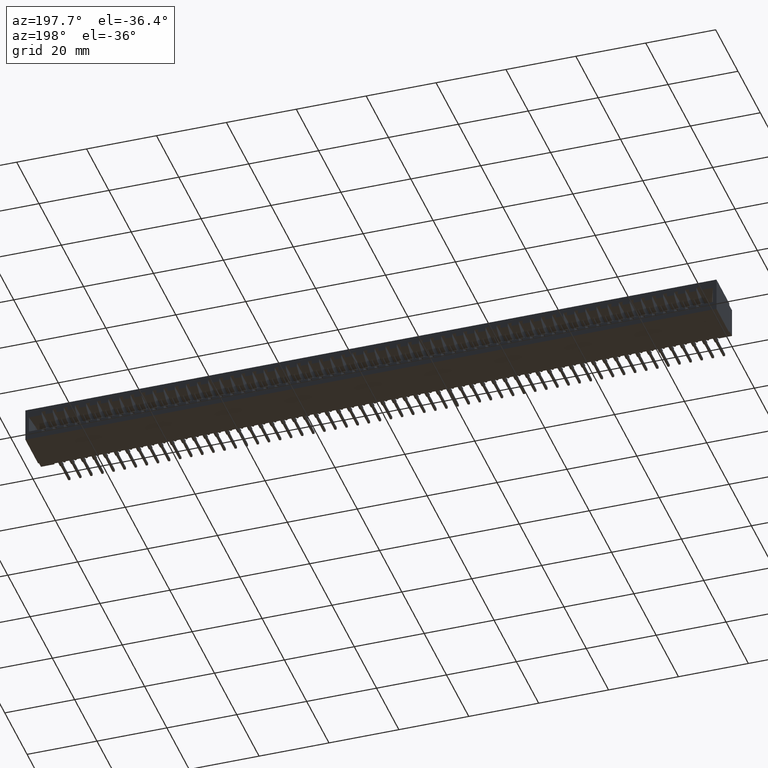
[diagram: clean part render]
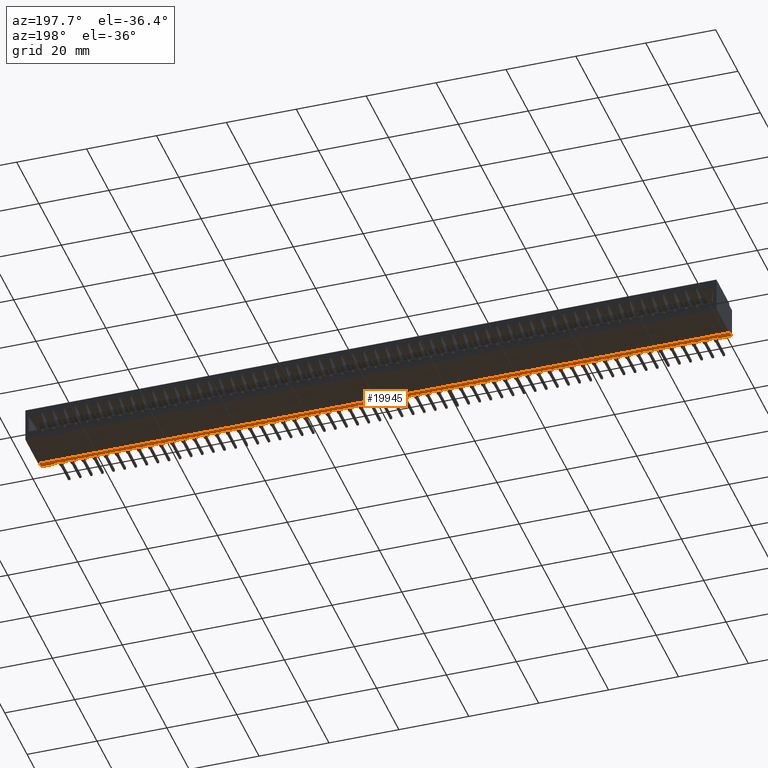
[diagram: same view with one face highlighted and labeled with its STEP entity id]
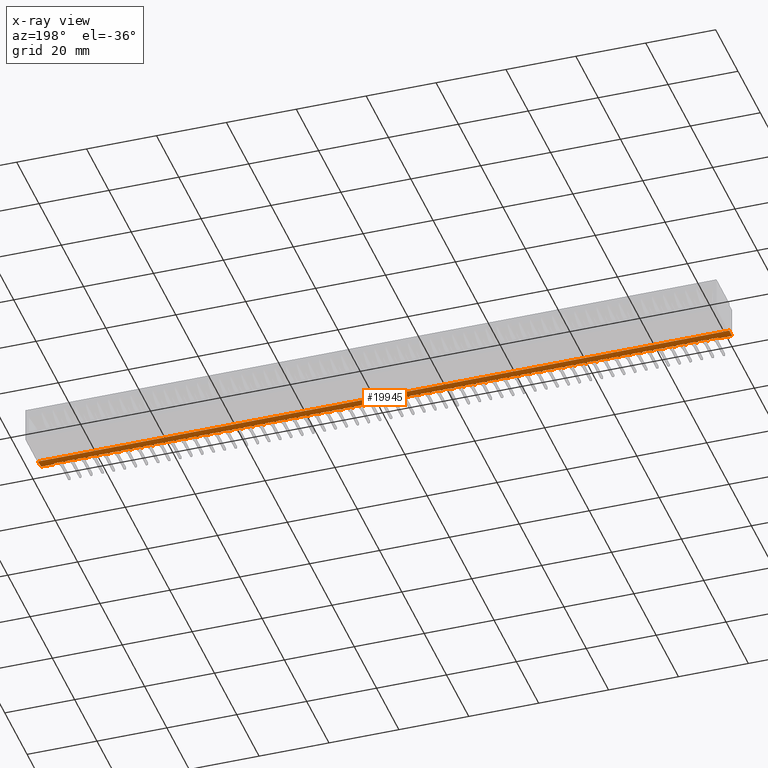
[diagram: x-ray of the same camera — body ghosted, the highlighted face saturated]
A machine part, auxiliary view. The second image highlights one B-rep face of the part: STEP entity #19945.
The next image is the same camera in x-ray: the body ghosted, the highlighted face saturated — about 0% of this face is hidden behind the body in this view.
In plain terms, the highlighted planar face has unit normal (0, 0, 1).
Its self-contained STEP definition (entity closure, byte-faithful):
#28 = CARTESIAN_POINT ( 'NONE',  ( 1.907499999999999529, 0.01499999999999997169, -0.3649999999999999911 ) ) ;
#69 = AXIS2_PLACEMENT_3D ( 'NONE', #55242, #73931, #82388 ) ;
#89 = VECTOR ( 'NONE', #10515, 39.37007874015748143 ) ;
#91 = VERTEX_POINT ( 'NONE', #31158 ) ;
#240 = DIRECTION ( 'NONE',  ( 0.0000000000000000000, 0.0000000000000000000, 1.000000000000000000 ) ) ;
#272 = CARTESIAN_POINT ( 'NONE',  ( 2.933999999999999275, 0.01499999999999996302, -0.3649999999999999911 ) ) ;
#367 = CIRCLE ( 'NONE', #60089, 0.01499999999999997689 ) ;
#377 = VERTEX_POINT ( 'NONE', #24030 ) ;
#390 = DIRECTION ( 'NONE',  ( 1.000000000000000000, 0.0000000000000000000, 0.0000000000000000000 ) ) ;
#442 = LINE ( 'NONE', #21379, #67790 ) ;
#444 = EDGE_CURVE ( 'NONE', #39902, #74879, #20524, .T. ) ;
#487 = ORIENTED_EDGE ( 'NONE', *, *, #86661, .F. ) ;
#519 = CIRCLE ( 'NONE', #83077, 0.01499999999999970281 ) ;
#607 = CARTESIAN_POINT ( 'NONE',  ( 2.907499999999999307, 0.01499999999999997169, -0.3649999999999999911 ) ) ;
#673 = VERTEX_POINT ( 'NONE', #44156 ) ;
#992 = VERTEX_POINT ( 'NONE', #71567 ) ;
#1019 = DIRECTION ( 'NONE',  ( 1.000000000000000000, -0.0000000000000000000, -2.307304048702925122E-16 ) ) ;
#1052 = VERTEX_POINT ( 'NONE', #57771 ) ;
#1064 = EDGE_CURVE ( 'NONE', #46771, #49640, #9200, .T. ) ;
#1150 = DIRECTION ( 'NONE',  ( 1.000000000000000000, 0.0000000000000000000, 0.0000000000000000000 ) ) ;
#1300 = DIRECTION ( 'NONE',  ( 1.000000000000000000, 0.0000000000000000000, 0.0000000000000000000 ) ) ;
#1335 = CARTESIAN_POINT ( 'NONE',  ( 1.558999999999999719, 0.01499999999999996302, -0.3649999999999999911 ) ) ;
#1497 = CARTESIAN_POINT ( 'NONE',  ( 3.308999999999999719, 0.01499999999999996302, -0.3649999999999999911 ) ) ;
#1657 = CARTESIAN_POINT ( 'NONE',  ( 6.017499999999999183, 0.01499999999999997169, -0.3649999999999999911 ) ) ;
#1721 = CARTESIAN_POINT ( 'NONE',  ( 0.8089999999999996083, 0.01499999999999996302, -0.3649999999999999911 ) ) ;
#1835 = DIRECTION ( 'NONE',  ( 0.0000000000000000000, 0.0000000000000000000, 1.000000000000000000 ) ) ;
#1866 = DIRECTION ( 'NONE',  ( 1.000000000000000000, 0.0000000000000000000, 0.0000000000000000000 ) ) ;
#1933 = ORIENTED_EDGE ( 'NONE', *, *, #8903, .F. ) ;
#1957 = AXIS2_PLACEMENT_3D ( 'NONE', #55153, #82296, #41757 ) ;
#2165 = EDGE_CURVE ( 'NONE', #47413, #54412, #36324, .T. ) ;
#2188 = ORIENTED_EDGE ( 'NONE', *, *, #83237, .F. ) ;
#2224 = DIRECTION ( 'NONE',  ( 1.000000000000000000, 0.0000000000000000000, 0.0000000000000000000 ) ) ;
#2244 = VERTEX_POINT ( 'NONE', #77070 ) ;
#2246 = CARTESIAN_POINT ( 'NONE',  ( 5.532499999999999751, 0.01499999999999997169, -0.3649999999999999911 ) ) ;
#2270 = EDGE_CURVE ( 'NONE', #78460, #79964, #45044, .T. ) ;
#2341 = ORIENTED_EDGE ( 'NONE', *, *, #38408, .F. ) ;
#2348 = DIRECTION ( 'NONE',  ( 1.000000000000000000, 0.0000000000000000000, 0.0000000000000000000 ) ) ;
#2654 = CARTESIAN_POINT ( 'NONE',  ( 2.002499999999999503, 0.01499999999999997169, -0.3649999999999999911 ) ) ;
#2769 = DIRECTION ( 'NONE',  ( 1.000000000000000000, 0.0000000000000000000, 0.0000000000000000000 ) ) ;
#2911 = AXIS2_PLACEMENT_3D ( 'NONE', #48984, #76150, #69889 ) ;
#2940 = CIRCLE ( 'NONE', #19993, 0.01499999999999970281 ) ;
#3118 = CARTESIAN_POINT ( 'NONE',  ( 5.002500000000000391, 0.01499999999999997169, -0.3649999999999999911 ) ) ;
#3145 = EDGE_CURVE ( 'NONE', #25841, #48973, #53507, .T. ) ;
#3149 = AXIS2_PLACEMENT_3D ( 'NONE', #64896, #31026, #65338 ) ;
#3214 = ORIENTED_EDGE ( 'NONE', *, *, #21240, .F. ) ;
#3371 = DIRECTION ( 'NONE',  ( 0.0000000000000000000, 0.0000000000000000000, 1.000000000000000000 ) ) ;
#3386 = AXIS2_PLACEMENT_3D ( 'NONE', #25286, #86744, #5629 ) ;
#3516 = DIRECTION ( 'NONE',  ( 1.000000000000000000, 0.0000000000000000000, 0.0000000000000000000 ) ) ;
#3543 = ORIENTED_EDGE ( 'NONE', *, *, #8440, .F. ) ;
#3554 = EDGE_CURVE ( 'NONE', #13275, #45073, #3730, .T. ) ;
#3575 = CARTESIAN_POINT ( 'NONE',  ( 6.407499999999999751, 0.01499999999999997169, -0.3649999999999999911 ) ) ;
#3624 = CARTESIAN_POINT ( 'NONE',  ( 0.7524999999999997247, 0.01499999999999997169, -0.3649999999999999911 ) ) ;
#3646 = VECTOR ( 'NONE', #56091, 39.37007874015748143 ) ;
#3660 = DIRECTION ( 'NONE',  ( 1.000000000000000000, -0.0000000000000000000, -2.307304048702925122E-16 ) ) ;
#3682 = DIRECTION ( 'NONE',  ( 1.000000000000000000, 0.0000000000000000000, 0.0000000000000000000 ) ) ;
#3730 = CIRCLE ( 'NONE', #79178, 0.01500000000000024925 ) ;
#3759 = DIRECTION ( 'NONE',  ( 1.000000000000000000, 0.0000000000000000000, 0.0000000000000000000 ) ) ;
#3770 = LINE ( 'NONE', #45673, #62159 ) ;
#4037 = LINE ( 'NONE', #4924, #38431 ) ;
#4039 = EDGE_CURVE ( 'NONE', #6273, #32690, #86277, .T. ) ;
#4153 = EDGE_CURVE ( 'NONE', #10717, #72214, #20765, .T. ) ;
#4284 = DIRECTION ( 'NONE',  ( 1.000000000000000000, -0.0000000000000000000, -2.307304048702925122E-16 ) ) ;
#4321 = ORIENTED_EDGE ( 'NONE', *, *, #8989, .F. ) ;
#4323 = AXIS2_PLACEMENT_3D ( 'NONE', #1657, #76964, #62298 ) ;
#4444 = DIRECTION ( 'NONE',  ( 1.000000000000000000, -0.0000000000000000000, -2.307304048702925122E-16 ) ) ;
#4490 = VECTOR ( 'NONE', #59719, 39.37007874015748143 ) ;
#4570 = EDGE_CURVE ( 'NONE', #65595, #46771, #47069, .T. ) ;
#4591 = CARTESIAN_POINT ( 'NONE',  ( 3.877499999999999059, 0.01499999999999997169, -0.3649999999999999911 ) ) ;
#4716 = ORIENTED_EDGE ( 'NONE', *, *, #62234, .F. ) ;
#4792 = DIRECTION ( 'NONE',  ( 1.000000000000000000, -0.0000000000000000000, -2.307304048702925122E-16 ) ) ;
#4875 = CARTESIAN_POINT ( 'NONE',  ( 3.767499999999999627, 0.01499999999999997169, -0.3649999999999999911 ) ) ;
#4924 = CARTESIAN_POINT ( 'NONE',  ( 6.808999999999998387, 0.01499999999999996302, -0.3649999999999999911 ) ) ;
#4982 = DIRECTION ( 'NONE',  ( 0.0000000000000000000, 0.0000000000000000000, 1.000000000000000000 ) ) ;
#5081 = VERTEX_POINT ( 'NONE', #32452 ) ;
#5399 = CARTESIAN_POINT ( 'NONE',  ( 2.558999999999999719, 0.01499999999999996302, -0.3649999999999999911 ) ) ;
#5412 = VERTEX_POINT ( 'NONE', #73231 ) ;
#5420 = CARTESIAN_POINT ( 'NONE',  ( 1.642499999999999849, 0.01499999999999997169, -0.3649999999999999911 ) ) ;
#5431 = ORIENTED_EDGE ( 'NONE', *, *, #64263, .F. ) ;
#5524 = VERTEX_POINT ( 'NONE', #32671 ) ;
#5582 = EDGE_CURVE ( 'NONE', #5412, #7615, #69623, .T. ) ;
#5629 = DIRECTION ( 'NONE',  ( 1.000000000000000000, 0.0000000000000000000, 0.0000000000000000000 ) ) ;
#5672 = EDGE_CURVE ( 'NONE', #32518, #40883, #74554, .T. ) ;
#5788 = CIRCLE ( 'NONE', #54179, 0.01500000000000024925 ) ;
#5814 = CARTESIAN_POINT ( 'NONE',  ( 3.683999999999999275, 0.01499999999999996302, -0.3649999999999999911 ) ) ;
#5853 = CARTESIAN_POINT ( 'NONE',  ( 3.782499999999999307, 0.01499999999999997169, -0.3649999999999999911 ) ) ;
#5864 = AXIS2_PLACEMENT_3D ( 'NONE', #69875, #51136, #15084 ) ;
#5878 = EDGE_CURVE ( 'NONE', #47550, #38212, #37942, .T. ) ;
#6100 = CARTESIAN_POINT ( 'NONE',  ( 7.517499999999998295, 0.01499999999999997169, -0.3649999999999999911 ) ) ;
#6192 = VERTEX_POINT ( 'NONE', #2654 ) ;
#6218 = CARTESIAN_POINT ( 'NONE',  ( 6.183999999999998387, 0.01499999999999996302, -0.3649999999999999911 ) ) ;
#6273 = VERTEX_POINT ( 'NONE', #66774 ) ;
#6294 = DIRECTION ( 'NONE',  ( 0.0000000000000000000, 0.0000000000000000000, 1.000000000000000000 ) ) ;
#6321 = CARTESIAN_POINT ( 'NONE',  ( 4.808999999999999275, 0.01499999999999996302, -0.3649999999999999911 ) ) ;
#6362 = AXIS2_PLACEMENT_3D ( 'NONE', #11098, #24481, #2224 ) ;
#6644 = CARTESIAN_POINT ( 'NONE',  ( 2.657499999999999751, 0.01499999999999997169, -0.3649999999999999911 ) ) ;
#6835 = VERTEX_POINT ( 'NONE', #60884 ) ;
#6968 = CARTESIAN_POINT ( 'NONE',  ( 2.407499999999999751, 0.01499999999999997169, -0.3649999999999999911 ) ) ;
#6972 = LINE ( 'NONE', #12753, #69270 ) ;
#7150 = ORIENTED_EDGE ( 'NONE', *, *, #17749, .F. ) ;
#7177 = ORIENTED_EDGE ( 'NONE', *, *, #40614, .F. ) ;
#7276 = DIRECTION ( 'NONE',  ( 1.000000000000000000, 0.0000000000000000000, 0.0000000000000000000 ) ) ;
#7284 = CIRCLE ( 'NONE', #54247, 0.01499999999999970281 ) ;
#7488 = VERTEX_POINT ( 'NONE', #80583 ) ;
#7615 = VERTEX_POINT ( 'NONE', #47625 ) ;
#7709 = LINE ( 'NONE', #34897, #45213 ) ;
#7933 = LINE ( 'NONE', #8367, #24327 ) ;
#8032 = LINE ( 'NONE', #1335, #13731 ) ;
#8130 = ORIENTED_EDGE ( 'NONE', *, *, #29545, .F. ) ;
#8170 = EDGE_CURVE ( 'NONE', #54778, #54630, #47897, .T. ) ;
#8272 = CARTESIAN_POINT ( 'NONE',  ( 1.392499999999999627, 0.01499999999999997169, -0.3649999999999999911 ) ) ;
#8367 = CARTESIAN_POINT ( 'NONE',  ( 7.433999999999998387, 0.01499999999999996302, -0.3649999999999999911 ) ) ;
#8440 = EDGE_CURVE ( 'NONE', #76866, #62295, #34432, .T. ) ;
#8569 = AXIS2_PLACEMENT_3D ( 'NONE', #82932, #35261, #75379 ) ;
#8655 = ORIENTED_EDGE ( 'NONE', *, *, #22799, .F. ) ;
#8731 = CIRCLE ( 'NONE', #5864, 0.01500000000000024925 ) ;
#8903 = EDGE_CURVE ( 'NONE', #61533, #13200, #87962, .T. ) ;
#8989 = EDGE_CURVE ( 'NONE', #20119, #25986, #56374, .T. ) ;
#9200 = LINE ( 'NONE', #23036, #67537 ) ;
#9254 = CARTESIAN_POINT ( 'NONE',  ( 1.183999999999999497, 0.01499999999999996302, -0.3649999999999999911 ) ) ;
#9434 = CIRCLE ( 'NONE', #55042, 0.01500000000000024925 ) ;
#9484 = EDGE_CURVE ( 'NONE', #66902, #16185, #35867, .T. ) ;
#9495 = EDGE_CURVE ( 'NONE', #74879, #78460, #18533, .T. ) ;
#9672 = AXIS2_PLACEMENT_3D ( 'NONE', #78670, #3371, #71995 ) ;
#9777 = CIRCLE ( 'NONE', #29713, 0.01499999999999997689 ) ;
#9828 = VECTOR ( 'NONE', #46189, 39.37007874015748143 ) ;
#9951 = DIRECTION ( 'NONE',  ( 1.000000000000000000, -0.0000000000000000000, -2.307304048702925122E-16 ) ) ;
#9987 = ORIENTED_EDGE ( 'NONE', *, *, #26856, .F. ) ;
#10094 = EDGE_CURVE ( 'NONE', #53798, #65595, #34898, .T. ) ;
#10305 = CARTESIAN_POINT ( 'NONE',  ( 0.6424999999999996270, 0.01499999999999997169, -0.3649999999999999911 ) ) ;
#10467 = AXIS2_PLACEMENT_3D ( 'NONE', #61058, #62381, #1300 ) ;
#10515 = DIRECTION ( 'NONE',  ( 1.000000000000000000, -0.0000000000000000000, -2.307304048702925122E-16 ) ) ;
#10540 = VERTEX_POINT ( 'NONE', #27238 ) ;
#10717 = VERTEX_POINT ( 'NONE', #19420 ) ;
#10780 = DIRECTION ( 'NONE',  ( 1.000000000000000000, 0.0000000000000000000, 0.0000000000000000000 ) ) ;
#10795 = AXIS2_PLACEMENT_3D ( 'NONE', #10305, #77614, #16568 ) ;
#10915 = ORIENTED_EDGE ( 'NONE', *, *, #77157, .F. ) ;
#10966 = LINE ( 'NONE', #25672, #89 ) ;
#11098 = CARTESIAN_POINT ( 'NONE',  ( 7.142499999999999183, 0.01499999999999997169, -0.3649999999999999911 ) ) ;
#11286 = CARTESIAN_POINT ( 'NONE',  ( 6.907499999999999751, 0.01499999999999997169, -0.3649999999999999911 ) ) ;
#11304 = EDGE_CURVE ( 'NONE', #673, #992, #367, .T. ) ;
#11332 = CARTESIAN_POINT ( 'NONE',  ( 0.3774999999999996692, 0.01499999999999997169, -0.3649999999999999911 ) ) ;
#11423 = ORIENTED_EDGE ( 'NONE', *, *, #73317, .F. ) ;
#11447 = ORIENTED_EDGE ( 'NONE', *, *, #65136, .F. ) ;
#11502 = VERTEX_POINT ( 'NONE', #65148 ) ;
#11514 = LINE ( 'NONE', #65896, #50852 ) ;
#11628 = EDGE_CURVE ( 'NONE', #46584, #51353, #40606, .T. ) ;
#11668 = VECTOR ( 'NONE', #87064, 39.37007874015748143 ) ;
#11831 = DIRECTION ( 'NONE',  ( 1.000000000000000000, 0.0000000000000000000, 0.0000000000000000000 ) ) ;
#11846 = ORIENTED_EDGE ( 'NONE', *, *, #56885, .F. ) ;
#12007 = VERTEX_POINT ( 'NONE', #79704 ) ;
#12051 = VECTOR ( 'NONE', #24116, 39.37007874015748143 ) ;
#12119 = DIRECTION ( 'NONE',  ( 1.000000000000000000, -0.0000000000000000000, -2.307304048702925122E-16 ) ) ;
#12237 = AXIS2_PLACEMENT_3D ( 'NONE', #27152, #54337, #81484 ) ;
#12239 = EDGE_CURVE ( 'NONE', #62424, #54293, #64423, .T. ) ;
#12294 = DIRECTION ( 'NONE',  ( 1.000000000000000000, -0.0000000000000000000, -2.307304048702925122E-16 ) ) ;
#12535 = CARTESIAN_POINT ( 'NONE',  ( 3.517499999999999627, 0.01499999999999997169, -0.3649999999999999911 ) ) ;
#12613 = EDGE_CURVE ( 'NONE', #19435, #13275, #69274, .T. ) ;
#12753 = CARTESIAN_POINT ( 'NONE',  ( 5.683999999999998387, 0.01499999999999996302, -0.3649999999999999911 ) ) ;
#12774 = DIRECTION ( 'NONE',  ( 0.0000000000000000000, 0.0000000000000000000, 1.000000000000000000 ) ) ;
#12833 = EDGE_CURVE ( 'NONE', #43349, #69163, #87300, .T. ) ;
#12847 = CARTESIAN_POINT ( 'NONE',  ( 2.058999999999999719, 0.01499999999999996302, -0.3649999999999999911 ) ) ;
#12875 = VECTOR ( 'NONE', #12294, 39.37007874015748143 ) ;
#12881 = AXIS2_PLACEMENT_3D ( 'NONE', #35737, #21941, #1866 ) ;
#12972 = EDGE_CURVE ( 'NONE', #56510, #43349, #20490, .T. ) ;
#13200 = VERTEX_POINT ( 'NONE', #46259 ) ;
#13220 = CARTESIAN_POINT ( 'NONE',  ( 0.2674999999999996825, 0.01499999999999997169, -0.3649999999999999911 ) ) ;
#13275 = VERTEX_POINT ( 'NONE', #31997 ) ;
#13495 = CARTESIAN_POINT ( 'NONE',  ( 0.2524999999999996692, 0.01499999999999997169, -0.3649999999999999911 ) ) ;
#13513 = CARTESIAN_POINT ( 'NONE',  ( 5.142499999999999183, 0.01499999999999997169, -0.3649999999999999911 ) ) ;
#13659 = DIRECTION ( 'NONE',  ( 1.000000000000000000, -0.0000000000000000000, -2.307304048702925122E-16 ) ) ;
#13731 = VECTOR ( 'NONE', #76650, 39.37007874015748143 ) ;
#13762 = ORIENTED_EDGE ( 'NONE', *, *, #31141, .F. ) ;
#13818 = ORIENTED_EDGE ( 'NONE', *, *, #42574, .F. ) ;
#13873 = EDGE_CURVE ( 'NONE', #49791, #24152, #30470, .T. ) ;
#13876 = ORIENTED_EDGE ( 'NONE', *, *, #53725, .F. ) ;
#13918 = DIRECTION ( 'NONE',  ( 1.000000000000000000, 0.0000000000000000000, 0.0000000000000000000 ) ) ;
#13966 = CARTESIAN_POINT ( 'NONE',  ( 2.683999999999999719, 0.01499999999999996302, -0.3649999999999999911 ) ) ;
#14053 = DIRECTION ( 'NONE',  ( 1.000000000000000000, 0.0000000000000000000, 0.0000000000000000000 ) ) ;
#14094 = CARTESIAN_POINT ( 'NONE',  ( 5.058999999999998387, 0.01499999999999996302, -0.3649999999999999911 ) ) ;
#14588 = CARTESIAN_POINT ( 'NONE',  ( 4.892500000000000071, 0.01499999999999997169, -0.3649999999999999911 ) ) ;
#14615 = ORIENTED_EDGE ( 'NONE', *, *, #5672, .F. ) ;
#14628 = VECTOR ( 'NONE', #68771, 39.37007874015748143 ) ;
#14662 = VERTEX_POINT ( 'NONE', #73540 ) ;
#14788 = LINE ( 'NONE', #41977, #16110 ) ;
#14895 = ORIENTED_EDGE ( 'NONE', *, *, #76426, .F. ) ;
#14906 = DIRECTION ( 'NONE',  ( 1.000000000000000000, -0.0000000000000000000, -2.307304048702925122E-16 ) ) ;
#14915 = VECTOR ( 'NONE', #61885, 39.37007874015748143 ) ;
#15084 = DIRECTION ( 'NONE',  ( 1.000000000000000000, 0.0000000000000000000, 0.0000000000000000000 ) ) ;
#15101 = CARTESIAN_POINT ( 'NONE',  ( 6.892499999999998295, 0.01499999999999997169, -0.3649999999999999911 ) ) ;
#15281 = VERTEX_POINT ( 'NONE', #11286 ) ;
#15438 = VERTEX_POINT ( 'NONE', #54069 ) ;
#15445 = LINE ( 'NONE', #83185, #77954 ) ;
#15746 = VECTOR ( 'NONE', #26524, 39.37007874015748143 ) ;
#15756 = VECTOR ( 'NONE', #4284, 39.37007874015748143 ) ;
#15772 = CIRCLE ( 'NONE', #65584, 0.01500000000000001159 ) ;
#15957 = DIRECTION ( 'NONE',  ( 1.000000000000000000, 0.0000000000000000000, 0.0000000000000000000 ) ) ;
#15958 = ORIENTED_EDGE ( 'NONE', *, *, #19170, .F. ) ;
#15987 = CIRCLE ( 'NONE', #65800, 0.01499999999999970281 ) ;
#16110 = VECTOR ( 'NONE', #77907, 39.37007874015748143 ) ;
#16185 = VERTEX_POINT ( 'NONE', #85910 ) ;
#16224 = ORIENTED_EDGE ( 'NONE', *, *, #22176, .F. ) ;
#16255 = CARTESIAN_POINT ( 'NONE',  ( 1.782499999999999529, 0.01499999999999997169, -0.3649999999999999911 ) ) ;
#16319 = DIRECTION ( 'NONE',  ( 0.0000000000000000000, 0.0000000000000000000, 1.000000000000000000 ) ) ;
#16451 = EDGE_CURVE ( 'NONE', #39774, #76067, #9434, .T. ) ;
#16568 = DIRECTION ( 'NONE',  ( 1.000000000000000000, 0.0000000000000000000, 0.0000000000000000000 ) ) ;
#16578 = EDGE_CURVE ( 'NONE', #69480, #87211, #36492, .T. ) ;
#16688 = DIRECTION ( 'NONE',  ( 1.000000000000000000, -0.0000000000000000000, -2.307304048702925122E-16 ) ) ;
#16739 = DIRECTION ( 'NONE',  ( 1.000000000000000000, 0.0000000000000000000, 0.0000000000000000000 ) ) ;
#16801 = DIRECTION ( 'NONE',  ( 0.0000000000000000000, 0.0000000000000000000, 1.000000000000000000 ) ) ;
#16968 = VERTEX_POINT ( 'NONE', #17076 ) ;
#17061 = AXIS2_PLACEMENT_3D ( 'NONE', #15101, #54810, #41855 ) ;
#17076 = CARTESIAN_POINT ( 'NONE',  ( 4.127499999999999503, 0.01499999999999997169, -0.3649999999999999911 ) ) ;
#17111 = LINE ( 'NONE', #77736, #51062 ) ;
#17139 = VECTOR ( 'NONE', #66441, 39.37007874015748143 ) ;
#17187 = DIRECTION ( 'NONE',  ( 1.000000000000000000, -0.0000000000000000000, -2.307304048702925122E-16 ) ) ;
#17304 = CIRCLE ( 'NONE', #64276, 0.01499999999999997689 ) ;
#17315 = LINE ( 'NONE', #47606, #22368 ) ;
#17403 = ORIENTED_EDGE ( 'NONE', *, *, #57981, .F. ) ;
#17582 = CARTESIAN_POINT ( 'NONE',  ( 7.392499999999999183, 0.01499999999999997169, -0.3649999999999999911 ) ) ;
#17749 = EDGE_CURVE ( 'NONE', #25553, #73236, #442, .T. ) ;
#17865 = CARTESIAN_POINT ( 'NONE',  ( 1.433999999999999719, 0.01499999999999996302, -0.3649999999999999911 ) ) ;
#17868 = EDGE_CURVE ( 'NONE', #16185, #60571, #63702, .T. ) ;
#17965 = CARTESIAN_POINT ( 'NONE',  ( 3.392500000000000071, 0.01499999999999997169, -0.3649999999999999911 ) ) ;
#18033 = CARTESIAN_POINT ( 'NONE',  ( 4.392500000000000071, 0.01499999999999997169, -0.3649999999999999911 ) ) ;
#18081 = ORIENTED_EDGE ( 'NONE', *, *, #11304, .F. ) ;
#18140 = LINE ( 'NONE', #72498, #20314 ) ;
#18202 = VERTEX_POINT ( 'NONE', #42995 ) ;
#18294 = AXIS2_PLACEMENT_3D ( 'NONE', #13513, #83006, #7276 ) ;
#18382 = CARTESIAN_POINT ( 'NONE',  ( 3.407499999999999751, 0.01499999999999997169, -0.3649999999999999911 ) ) ;
#18435 = VERTEX_POINT ( 'NONE', #13495 ) ;
#18503 = CIRCLE ( 'NONE', #27110, 0.01499999999999970281 ) ;
#18533 = LINE ( 'NONE', #58218, #71483 ) ;
#18550 = LINE ( 'NONE', #59992, #15756 ) ;
#18618 = VERTEX_POINT ( 'NONE', #25012 ) ;
#18817 = CARTESIAN_POINT ( 'NONE',  ( 5.267499999999999183, 0.01499999999999997169, -0.3649999999999999911 ) ) ;
#19156 = EDGE_CURVE ( 'NONE', #18618, #57059, #17315, .T. ) ;
#19170 = EDGE_CURVE ( 'NONE', #377, #70156, #40010, .T. ) ;
#19275 = VECTOR ( 'NONE', #87868, 39.37007874015748143 ) ;
#19290 = DIRECTION ( 'NONE',  ( 0.0000000000000000000, 0.0000000000000000000, 1.000000000000000000 ) ) ;
#19328 = DIRECTION ( 'NONE',  ( 0.0000000000000000000, 0.0000000000000000000, 1.000000000000000000 ) ) ;
#19420 = CARTESIAN_POINT ( 'NONE',  ( 4.532499999999999751, 0.01499999999999997169, -0.3649999999999999911 ) ) ;
#19435 = VERTEX_POINT ( 'NONE', #56918 ) ;
#19502 = VECTOR ( 'NONE', #62901, 39.37007874015748143 ) ;
#19524 = DIRECTION ( 'NONE',  ( -1.000000000000000000, -0.0000000000000000000, -0.0000000000000000000 ) ) ;
#19570 = CARTESIAN_POINT ( 'NONE',  ( 5.782499999999999751, 0.01499999999999997169, -0.3649999999999999911 ) ) ;
#19573 = EDGE_CURVE ( 'NONE', #53579, #21671, #70826, .T. ) ;
#19690 = CARTESIAN_POINT ( 'NONE',  ( 4.767500000000000071, 0.01499999999999997169, -0.3649999999999999911 ) ) ;
#19733 = CARTESIAN_POINT ( 'NONE',  ( 4.377499999999999503, 0.01499999999999997169, -0.3649999999999999911 ) ) ;
#19792 = AXIS2_PLACEMENT_3D ( 'NONE', #33213, #64999, #37807 ) ;
#19932 = CIRCLE ( 'NONE', #82601, 0.01499999999999970281 ) ;
#19944 = CARTESIAN_POINT ( 'NONE',  ( 3.157499999999999307, 0.01499999999999997169, -0.3649999999999999911 ) ) ;
#19945 = ADVANCED_FACE ( 'NONE', ( #25029 ), #43079, .F. ) ;
#19993 = AXIS2_PLACEMENT_3D ( 'NONE', #54786, #68140, #390 ) ;
#20119 = VERTEX_POINT ( 'NONE', #65316 ) ;
#20141 = CIRCLE ( 'NONE', #68706, 0.01500000000000024925 ) ;
#20208 = ORIENTED_EDGE ( 'NONE', *, *, #13873, .F. ) ;
#20248 = CARTESIAN_POINT ( 'NONE',  ( 3.532499999999999751, 0.01499999999999997169, -0.3649999999999999911 ) ) ;
#20249 = CARTESIAN_POINT ( 'NONE',  ( 3.032499999999999307, 0.01499999999999997169, -0.3649999999999999911 ) ) ;
#20314 = VECTOR ( 'NONE', #13659, 39.37007874015748143 ) ;
#20437 = CARTESIAN_POINT ( 'NONE',  ( 0.7824999999999997513, 0.01499999999999997169, -0.3649999999999999911 ) ) ;
#20467 = EDGE_CURVE ( 'NONE', #74981, #85538, #73798, .T. ) ;
#20490 = LINE ( 'NONE', #48129, #64551 ) ;
#20524 = CIRCLE ( 'NONE', #87351, 0.01499999999999997689 ) ;
#20657 = CARTESIAN_POINT ( 'NONE',  ( 4.627499999999999503, 0.01499999999999997169, -0.3649999999999999911 ) ) ;
#20765 = LINE ( 'NONE', #68460, #58261 ) ;
#20924 = VECTOR ( 'NONE', #40747, 39.37007874015748143 ) ;
#21043 = ORIENTED_EDGE ( 'NONE', *, *, #48171, .F. ) ;
#21240 = EDGE_CURVE ( 'NONE', #73236, #62451, #86645, .T. ) ;
#21379 = CARTESIAN_POINT ( 'NONE',  ( 0.3089999999999996083, 0.01499999999999996302, -0.3649999999999999911 ) ) ;
#21671 = VERTEX_POINT ( 'NONE', #32659 ) ;
#21900 = DIRECTION ( 'NONE',  ( 0.0000000000000000000, 0.0000000000000000000, 1.000000000000000000 ) ) ;
#21941 = DIRECTION ( 'NONE',  ( 0.0000000000000000000, 0.0000000000000000000, 1.000000000000000000 ) ) ;
#22017 = AXIS2_PLACEMENT_3D ( 'NONE', #41672, #75970, #14053 ) ;
#22176 = EDGE_CURVE ( 'NONE', #23451, #75896, #4037, .T. ) ;
#22368 = VECTOR ( 'NONE', #88138, 39.37007874015748143 ) ;
#22430 = ORIENTED_EDGE ( 'NONE', *, *, #12239, .F. ) ;
#22570 = CARTESIAN_POINT ( 'NONE',  ( 1.892499999999999627, 0.01499999999999997169, -0.3649999999999999911 ) ) ;
#22649 = CARTESIAN_POINT ( 'NONE',  ( 5.433999999999999275, 0.01499999999999996302, -0.3649999999999999911 ) ) ;
#22799 = EDGE_CURVE ( 'NONE', #71634, #58015, #42772, .T. ) ;
#22892 = DIRECTION ( 'NONE',  ( 0.0000000000000000000, 0.0000000000000000000, 1.000000000000000000 ) ) ;
#22902 = EDGE_CURVE ( 'NONE', #85538, #5524, #10966, .T. ) ;
#22977 = DIRECTION ( 'NONE',  ( 0.0000000000000000000, 0.0000000000000000000, 1.000000000000000000 ) ) ;
#23028 = CARTESIAN_POINT ( 'NONE',  ( 6.392499999999999183, 0.01499999999999997169, -0.3649999999999999911 ) ) ;
#23036 = CARTESIAN_POINT ( 'NONE',  ( 2.808999999999999275, 0.01499999999999996302, -0.3649999999999999911 ) ) ;
#23147 = AXIS2_PLACEMENT_3D ( 'NONE', #5420, #58482, #10780 ) ;
#23151 = CARTESIAN_POINT ( 'NONE',  ( 2.282499999999999307, 0.01499999999999997169, -0.3649999999999999911 ) ) ;
#23160 = CARTESIAN_POINT ( 'NONE',  ( 2.392499999999999627, 0.01499999999999997169, -0.3649999999999999911 ) ) ;
#23169 = DIRECTION ( 'NONE',  ( 0.0000000000000000000, 0.0000000000000000000, 1.000000000000000000 ) ) ;
#23451 = VERTEX_POINT ( 'NONE', #57036 ) ;
#23747 = LINE ( 'NONE', #77232, #65817 ) ;
#23909 = VERTEX_POINT ( 'NONE', #43075 ) ;
#24030 = CARTESIAN_POINT ( 'NONE',  ( 5.157499999999999751, 0.01499999999999997169, -0.3649999999999999911 ) ) ;
#24116 = DIRECTION ( 'NONE',  ( 1.000000000000000000, -0.0000000000000000000, -2.307304048702925122E-16 ) ) ;
#24144 = DIRECTION ( 'NONE',  ( 0.0000000000000000000, 1.000000000000000000, 0.0000000000000000000 ) ) ;
#24152 = VERTEX_POINT ( 'NONE', #51501 ) ;
#24327 = VECTOR ( 'NONE', #35550, 39.37007874015748143 ) ;
#24386 = EDGE_CURVE ( 'NONE', #40883, #54952, #519, .T. ) ;
#24413 = AXIS2_PLACEMENT_3D ( 'NONE', #8272, #22977, #1150 ) ;
#24428 = EDGE_CURVE ( 'NONE', #56569, #1052, #87316, .T. ) ;
#24481 = DIRECTION ( 'NONE',  ( 0.0000000000000000000, 0.0000000000000000000, 1.000000000000000000 ) ) ;
#24553 = EDGE_CURVE ( 'NONE', #49871, #26056, #75964, .T. ) ;
#24720 = LINE ( 'NONE', #37638, #78265 ) ;
#24736 = CARTESIAN_POINT ( 'NONE',  ( 2.183999999999999719, 0.01499999999999996302, -0.3649999999999999911 ) ) ;
#24772 = ORIENTED_EDGE ( 'NONE', *, *, #16451, .F. ) ;
#24810 = CARTESIAN_POINT ( 'NONE',  ( 6.002499999999999503, 0.01499999999999997169, -0.3649999999999999911 ) ) ;
#25012 = CARTESIAN_POINT ( 'NONE',  ( 7.032499999999999751, 0.01499999999999997169, -0.3649999999999999911 ) ) ;
#25029 = FACE_OUTER_BOUND ( 'NONE', #66306, .T. ) ;
#25068 = CARTESIAN_POINT ( 'NONE',  ( 5.752499999999999503, 0.01499999999999997169, -0.3649999999999999911 ) ) ;
#25277 = CARTESIAN_POINT ( 'NONE',  ( 3.282499999999999751, 0.01499999999999997169, -0.3649999999999999911 ) ) ;
#25286 = CARTESIAN_POINT ( 'NONE',  ( 4.142500000000000071, 0.01499999999999997169, -0.3649999999999999911 ) ) ;
#25346 = EDGE_CURVE ( 'NONE', #26056, #72347, #27435, .T. ) ;
#25363 = EDGE_CURVE ( 'NONE', #51353, #53798, #29142, .T. ) ;
#25468 = CARTESIAN_POINT ( 'NONE',  ( 3.058999999999999275, 0.01499999999999996302, -0.3649999999999999911 ) ) ;
#25535 = DIRECTION ( 'NONE',  ( 0.0000000000000000000, 0.0000000000000000000, 1.000000000000000000 ) ) ;
#25548 = ORIENTED_EDGE ( 'NONE', *, *, #58028, .F. ) ;
#25553 = VERTEX_POINT ( 'NONE', #78140 ) ;
#25672 = CARTESIAN_POINT ( 'NONE',  ( 3.433999999999999275, 0.01499999999999996302, -0.3649999999999999911 ) ) ;
#25719 = VERTEX_POINT ( 'NONE', #4591 ) ;
#25737 = LINE ( 'NONE', #80508, #75736 ) ;
#25841 = VERTEX_POINT ( 'NONE', #26419 ) ;
#25910 = CIRCLE ( 'NONE', #53158, 0.01499999999999997689 ) ;
#25930 = CARTESIAN_POINT ( 'NONE',  ( 7.785000000000000142, 0.1000000000000000056, -0.3649999999999999911 ) ) ;
#25986 = VERTEX_POINT ( 'NONE', #63807 ) ;
#26056 = VERTEX_POINT ( 'NONE', #19944 ) ;
#26072 = EDGE_CURVE ( 'NONE', #54630, #23909, #78901, .T. ) ;
#26150 = LINE ( 'NONE', #38635, #85565 ) ;
#26208 = ORIENTED_EDGE ( 'NONE', *, *, #20467, .F. ) ;
#26352 = VERTEX_POINT ( 'NONE', #64458 ) ;
#26399 = DIRECTION ( 'NONE',  ( 0.0000000000000000000, 0.0000000000000000000, 1.000000000000000000 ) ) ;
#26419 = CARTESIAN_POINT ( 'NONE',  ( 0.6274999999999996136, 0.01499999999999997169, -0.3649999999999999911 ) ) ;
#26503 = CARTESIAN_POINT ( 'NONE',  ( 7.183999999999998387, 0.01499999999999996302, -0.3649999999999999911 ) ) ;
#26524 = DIRECTION ( 'NONE',  ( 1.000000000000000000, -0.0000000000000000000, -2.307304048702925122E-16 ) ) ;
#26547 = DIRECTION ( 'NONE',  ( 1.000000000000000000, 0.0000000000000000000, 0.0000000000000000000 ) ) ;
#26752 = AXIS2_PLACEMENT_3D ( 'NONE', #33684, #33234, #66658 ) ;
#26846 = AXIS2_PLACEMENT_3D ( 'NONE', #60770, #87930, #2769 ) ;
#26856 = EDGE_CURVE ( 'NONE', #73303, #5081, #32175, .T. ) ;
#27109 = CARTESIAN_POINT ( 'NONE',  ( 5.183999999999999275, 0.01499999999999996302, -0.3649999999999999911 ) ) ;
#27110 = AXIS2_PLACEMENT_3D ( 'NONE', #86532, #4982, #54912 ) ;
#27123 = AXIS2_PLACEMENT_3D ( 'NONE', #84614, #83751, #49469 ) ;
#27152 = CARTESIAN_POINT ( 'NONE',  ( 4.517499999999999183, 0.01499999999999997169, -0.3649999999999999911 ) ) ;
#27205 = DIRECTION ( 'NONE',  ( 1.000000000000000000, -0.0000000000000000000, -2.307304048702925122E-16 ) ) ;
#27238 = CARTESIAN_POINT ( 'NONE',  ( 0.5324999999999997513, 0.01499999999999997169, -0.3649999999999999911 ) ) ;
#27345 = CARTESIAN_POINT ( 'NONE',  ( 6.627499999999999503, 0.01499999999999997169, -0.3649999999999999911 ) ) ;
#27435 = LINE ( 'NONE', #33656, #36254 ) ;
#27779 = CIRCLE ( 'NONE', #6362, 0.01499999999999970281 ) ;
#27831 = AXIS2_PLACEMENT_3D ( 'NONE', #23160, #43210, #56594 ) ;
#27833 = CARTESIAN_POINT ( 'NONE',  ( 0.0000000000000000000, 0.0000000000000000000, -0.3649999999999999911 ) ) ;
#27850 = ORIENTED_EDGE ( 'NONE', *, *, #12833, .F. ) ;
#28042 = ORIENTED_EDGE ( 'NONE', *, *, #8170, .F. ) ;
#28494 = VECTOR ( 'NONE', #68616, 39.37007874015748143 ) ;
#28550 = VERTEX_POINT ( 'NONE', #27833 ) ;
#28634 = VERTEX_POINT ( 'NONE', #82180 ) ;
#28683 = CARTESIAN_POINT ( 'NONE',  ( 6.377499999999999503, 0.01499999999999997169, -0.3649999999999999911 ) ) ;
#28686 = DIRECTION ( 'NONE',  ( 1.000000000000000000, 0.0000000000000000000, 0.0000000000000000000 ) ) ;
#28909 = CARTESIAN_POINT ( 'NONE',  ( 3.642499999999999627, 0.01499999999999997169, -0.3649999999999999911 ) ) ;
#28910 = VERTEX_POINT ( 'NONE', #67380 ) ;
#28957 = EDGE_CURVE ( 'NONE', #76241, #20119, #61154, .T. ) ;
#28962 = DIRECTION ( 'NONE',  ( 0.0000000000000000000, 0.0000000000000000000, 1.000000000000000000 ) ) ;
#29033 = DIRECTION ( 'NONE',  ( 1.000000000000000000, 0.0000000000000000000, 0.0000000000000000000 ) ) ;
#29142 = CIRCLE ( 'NONE', #22017, 0.01500000000000024925 ) ;
#29179 = VECTOR ( 'NONE', #12119, 39.37007874015748143 ) ;
#29264 = CARTESIAN_POINT ( 'NONE',  ( 2.532499999999999751, 0.01499999999999997169, -0.3649999999999999911 ) ) ;
#29320 = AXIS2_PLACEMENT_3D ( 'NONE', #32669, #19290, #79024 ) ;
#29390 = ORIENTED_EDGE ( 'NONE', *, *, #65550, .F. ) ;
#29406 = AXIS2_PLACEMENT_3D ( 'NONE', #34333, #60628, #75321 ) ;
#29463 = CARTESIAN_POINT ( 'NONE',  ( 1.532499999999999529, 0.01499999999999997169, -0.3649999999999999911 ) ) ;
#29545 = EDGE_CURVE ( 'NONE', #48693, #30197, #71213, .T. ) ;
#29593 = CARTESIAN_POINT ( 'NONE',  ( 4.183999999999999275, 0.01499999999999996302, -0.3649999999999999911 ) ) ;
#29629 = EDGE_CURVE ( 'NONE', #79964, #45338, #86768, .T. ) ;
#29713 = AXIS2_PLACEMENT_3D ( 'NONE', #42918, #63416, #2348 ) ;
#30058 = CIRCLE ( 'NONE', #79844, 0.01500000000000024925 ) ;
#30167 = CARTESIAN_POINT ( 'NONE',  ( 0.6839999999999996083, 0.01499999999999996302, -0.3649999999999999911 ) ) ;
#30197 = VERTEX_POINT ( 'NONE', #36155 ) ;
#30213 = DIRECTION ( 'NONE',  ( 0.0000000000000000000, 0.0000000000000000000, 1.000000000000000000 ) ) ;
#30390 = ORIENTED_EDGE ( 'NONE', *, *, #42991, .F. ) ;
#30469 = ORIENTED_EDGE ( 'NONE', *, *, #53943, .F. ) ;
#30470 = LINE ( 'NONE', #63910, #64662 ) ;
#30807 = EDGE_CURVE ( 'NONE', #62957, #47413, #57437, .T. ) ;
#31026 = DIRECTION ( 'NONE',  ( 0.0000000000000000000, 0.0000000000000000000, 1.000000000000000000 ) ) ;
#31121 = DIRECTION ( 'NONE',  ( 1.000000000000000000, -0.0000000000000000000, -2.307304048702925122E-16 ) ) ;
#31141 = EDGE_CURVE ( 'NONE', #15281, #67040, #15445, .T. ) ;
#31158 = CARTESIAN_POINT ( 'NONE',  ( 3.907499999999999751, 0.01499999999999997169, -0.3649999999999999911 ) ) ;
#31348 = CIRCLE ( 'NONE', #8569, 0.01499999999999997689 ) ;
#31395 = LINE ( 'NONE', #51919, #11668 ) ;
#31402 = DIRECTION ( 'NONE',  ( 0.0000000000000000000, 1.000000000000000000, 0.0000000000000000000 ) ) ;
#31484 = LINE ( 'NONE', #73354, #12875 ) ;
#31521 = AXIS2_PLACEMENT_3D ( 'NONE', #4875, #32066, #65062 ) ;
#31880 = VECTOR ( 'NONE', #79520, 39.37007874015748143 ) ;
#31997 = CARTESIAN_POINT ( 'NONE',  ( 4.252499999999999503, 0.01499999999999997169, -0.3649999999999999911 ) ) ;
#32013 = AXIS2_PLACEMENT_3D ( 'NONE', #19690, #81169, #41092 ) ;
#32020 = CARTESIAN_POINT ( 'NONE',  ( 7.002499999999999503, 0.01499999999999997169, -0.3649999999999999911 ) ) ;
#32066 = DIRECTION ( 'NONE',  ( 0.0000000000000000000, 0.0000000000000000000, 1.000000000000000000 ) ) ;
#32114 = DIRECTION ( 'NONE',  ( 1.000000000000000000, -0.0000000000000000000, -2.307304048702925122E-16 ) ) ;
#32146 = CARTESIAN_POINT ( 'NONE',  ( 5.907499999999998863, 0.01499999999999997169, -0.3649999999999999911 ) ) ;
#32175 = CIRCLE ( 'NONE', #29320, 0.01500000000000024925 ) ;
#32364 = EDGE_CURVE ( 'NONE', #45338, #46584, #68189, .T. ) ;
#32400 = CARTESIAN_POINT ( 'NONE',  ( 7.127499999999999503, 0.01499999999999997169, -0.3649999999999999911 ) ) ;
#32452 = CARTESIAN_POINT ( 'NONE',  ( 4.032499999999999751, 0.01499999999999997169, -0.3649999999999999911 ) ) ;
#32518 = VERTEX_POINT ( 'NONE', #19570 ) ;
#32632 = CARTESIAN_POINT ( 'NONE',  ( 0.5174999999999996270, 0.01499999999999997169, -0.3649999999999999911 ) ) ;
#32659 = CARTESIAN_POINT ( 'NONE',  ( 5.032499999999999751, 0.01499999999999997169, -0.3649999999999999911 ) ) ;
#32669 = CARTESIAN_POINT ( 'NONE',  ( 4.017500000000000071, 0.01499999999999997169, -0.3649999999999999911 ) ) ;
#32671 = CARTESIAN_POINT ( 'NONE',  ( 3.502499999999999503, 0.01499999999999997169, -0.3649999999999999911 ) ) ;
#32690 = VERTEX_POINT ( 'NONE', #56420 ) ;
#32789 = VECTOR ( 'NONE', #49151, 39.37007874015748143 ) ;
#32798 = AXIS2_PLACEMENT_3D ( 'NONE', #66956, #25535, #33090 ) ;
#32805 = CIRCLE ( 'NONE', #2911, 0.01499999999999970281 ) ;
#32950 = ORIENTED_EDGE ( 'NONE', *, *, #32364, .F. ) ;
#32999 = ORIENTED_EDGE ( 'NONE', *, *, #45226, .F. ) ;
#33061 = VECTOR ( 'NONE', #39708, 39.37007874015748143 ) ;
#33090 = DIRECTION ( 'NONE',  ( 1.000000000000000000, 0.0000000000000000000, 0.0000000000000000000 ) ) ;
#33213 = CARTESIAN_POINT ( 'NONE',  ( 0.3924999999999996825, 0.01499999999999997169, -0.3649999999999999911 ) ) ;
#33234 = DIRECTION ( 'NONE',  ( 0.0000000000000000000, 0.0000000000000000000, 1.000000000000000000 ) ) ;
#33290 = CARTESIAN_POINT ( 'NONE',  ( 2.502499999999999947, 0.01499999999999997169, -0.3649999999999999911 ) ) ;
#33387 = ORIENTED_EDGE ( 'NONE', *, *, #24428, .F. ) ;
#33451 = ORIENTED_EDGE ( 'NONE', *, *, #58219, .T. ) ;
#33509 = EDGE_CURVE ( 'NONE', #6192, #18202, #62591, .T. ) ;
#33656 = CARTESIAN_POINT ( 'NONE',  ( 3.183999999999999275, 0.01499999999999996302, -0.3649999999999999911 ) ) ;
#33684 = CARTESIAN_POINT ( 'NONE',  ( 5.017500000000000071, 0.01499999999999997169, -0.3649999999999999911 ) ) ;
#33797 = CARTESIAN_POINT ( 'NONE',  ( 7.785000000000000142, 0.0000000000000000000, -0.3649999999999999911 ) ) ;
#33945 = EDGE_CURVE ( 'NONE', #10540, #25841, #67725, .T. ) ;
#33960 = LINE ( 'NONE', #6321, #29179 ) ;
#34021 = VECTOR ( 'NONE', #65586, 39.37007874015748143 ) ;
#34073 = CARTESIAN_POINT ( 'NONE',  ( 4.657499999999999751, 0.01499999999999997169, -0.3649999999999999911 ) ) ;
#34105 = DIRECTION ( 'NONE',  ( 1.000000000000000000, -0.0000000000000000000, -2.307304048702925122E-16 ) ) ;
#34205 = DIRECTION ( 'NONE',  ( 1.000000000000000000, 0.0000000000000000000, 0.0000000000000000000 ) ) ;
#34333 = CARTESIAN_POINT ( 'NONE',  ( 1.767499999999999627, 0.01499999999999997169, -0.3649999999999999911 ) ) ;
#34432 = CIRCLE ( 'NONE', #58660, 0.01499999999999997689 ) ;
#34688 = LINE ( 'NONE', #81912, #14915 ) ;
#34760 = EDGE_CURVE ( 'NONE', #56729, #18435, #40783, .T. ) ;
#34866 = ORIENTED_EDGE ( 'NONE', *, *, #16578, .F. ) ;
#34892 = DIRECTION ( 'NONE',  ( 1.000000000000000000, -0.0000000000000000000, -2.307304048702925122E-16 ) ) ;
#34897 = CARTESIAN_POINT ( 'NONE',  ( 7.558999999999998387, 0.01499999999999996302, -0.3649999999999999911 ) ) ;
#34898 = LINE ( 'NONE', #13966, #14628 ) ;
#34928 = CARTESIAN_POINT ( 'NONE',  ( 1.267499999999999627, 0.01499999999999997169, -0.3649999999999999911 ) ) ;
#35184 = DIRECTION ( 'NONE',  ( 1.000000000000000000, -0.0000000000000000000, -2.307304048702925122E-16 ) ) ;
#35261 = DIRECTION ( 'NONE',  ( 0.0000000000000000000, 0.0000000000000000000, 1.000000000000000000 ) ) ;
#35265 = DIRECTION ( 'NONE',  ( 1.000000000000000000, 0.0000000000000000000, 0.0000000000000000000 ) ) ;
#35338 = DIRECTION ( 'NONE',  ( 0.0000000000000000000, 0.0000000000000000000, 1.000000000000000000 ) ) ;
#35396 = AXIS2_PLACEMENT_3D ( 'NONE', #17965, #85690, #38449 ) ;
#35432 = ORIENTED_EDGE ( 'NONE', *, *, #36175, .F. ) ;
#35550 = DIRECTION ( 'NONE',  ( 1.000000000000000000, -0.0000000000000000000, -2.307304048702925122E-16 ) ) ;
#35601 = CARTESIAN_POINT ( 'NONE',  ( 0.5589999999999996083, 0.01499999999999996302, -0.3649999999999999911 ) ) ;
#35737 = CARTESIAN_POINT ( 'NONE',  ( 2.767500000000000071, 0.01499999999999997169, -0.3649999999999999911 ) ) ;
#35787 = ORIENTED_EDGE ( 'NONE', *, *, #3145, .F. ) ;
#35807 = CARTESIAN_POINT ( 'NONE',  ( 6.752499999999999503, 0.01499999999999997169, -0.3649999999999999911 ) ) ;
#35867 = CIRCLE ( 'NONE', #3149, 0.01499999999999970281 ) ;
#35869 = ORIENTED_EDGE ( 'NONE', *, *, #3554, .F. ) ;
#35919 = CIRCLE ( 'NONE', #23147, 0.01499999999999997689 ) ;
#36155 = CARTESIAN_POINT ( 'NONE',  ( 1.002499999999999725, 0.01499999999999997169, -0.3649999999999999911 ) ) ;
#36175 = EDGE_CURVE ( 'NONE', #28910, #56510, #2940, .T. ) ;
#36206 = ORIENTED_EDGE ( 'NONE', *, *, #2165, .F. ) ;
#36254 = VECTOR ( 'NONE', #34105, 39.37007874015748143 ) ;
#36324 = CIRCLE ( 'NONE', #29406, 0.01499999999999997689 ) ;
#36492 = CIRCLE ( 'NONE', #86274, 0.01499999999999970281 ) ;
#36696 = VECTOR ( 'NONE', #71229, 39.37007874015748143 ) ;
#36796 = VERTEX_POINT ( 'NONE', #25068 ) ;
#36898 = ORIENTED_EDGE ( 'NONE', *, *, #65867, .F. ) ;
#36995 = CARTESIAN_POINT ( 'NONE',  ( 6.127499999999999503, 0.01499999999999997169, -0.3649999999999999911 ) ) ;
#37054 = ORIENTED_EDGE ( 'NONE', *, *, #66965, .F. ) ;
#37074 = CIRCLE ( 'NONE', #69, 0.01500000000000001159 ) ;
#37199 = DIRECTION ( 'NONE',  ( -1.000000000000000000, -0.0000000000000000000, -0.0000000000000000000 ) ) ;
#37345 = VERTEX_POINT ( 'NONE', #54355 ) ;
#37367 = ORIENTED_EDGE ( 'NONE', *, *, #56298, .F. ) ;
#37438 = AXIS2_PLACEMENT_3D ( 'NONE', #76988, #16801, #55645 ) ;
#37449 = ORIENTED_EDGE ( 'NONE', *, *, #52853, .F. ) ;
#37527 = VERTEX_POINT ( 'NONE', #77884 ) ;
#37638 = CARTESIAN_POINT ( 'NONE',  ( 7.785000000000000142, 0.0000000000000000000, -0.3649999999999999911 ) ) ;
#37684 = CIRCLE ( 'NONE', #32013, 0.01500000000000024925 ) ;
#37752 = ORIENTED_EDGE ( 'NONE', *, *, #51275, .F. ) ;
#37807 = DIRECTION ( 'NONE',  ( 1.000000000000000000, 0.0000000000000000000, 0.0000000000000000000 ) ) ;
#37829 = CARTESIAN_POINT ( 'NONE',  ( 3.002499999999999503, 0.01499999999999997169, -0.3649999999999999911 ) ) ;
#37884 = VERTEX_POINT ( 'NONE', #48007 ) ;
#37942 = LINE ( 'NONE', #5814, #17139 ) ;
#38044 = ORIENTED_EDGE ( 'NONE', *, *, #81195, .T. ) ;
#38080 = AXIS2_PLACEMENT_3D ( 'NONE', #83923, #22892, #77252 ) ;
#38189 = VERTEX_POINT ( 'NONE', #20249 ) ;
#38212 = VERTEX_POINT ( 'NONE', #74167 ) ;
#38224 = VERTEX_POINT ( 'NONE', #34073 ) ;
#38408 = EDGE_CURVE ( 'NONE', #85016, #11502, #56616, .T. ) ;
#38431 = VECTOR ( 'NONE', #32114, 39.37007874015748143 ) ;
#38449 = DIRECTION ( 'NONE',  ( 1.000000000000000000, 0.0000000000000000000, 0.0000000000000000000 ) ) ;
#38519 = CARTESIAN_POINT ( 'NONE',  ( 5.657499999999999751, 0.01499999999999997169, -0.3649999999999999911 ) ) ;
#38635 = CARTESIAN_POINT ( 'NONE',  ( 1.808999999999999719, 0.01499999999999996302, -0.3649999999999999911 ) ) ;
#38876 = AXIS2_PLACEMENT_3D ( 'NONE', #66211, #54642, #11831 ) ;
#38993 = ORIENTED_EDGE ( 'NONE', *, *, #53205, .F. ) ;
#39388 = EDGE_CURVE ( 'NONE', #80498, #377, #65247, .T. ) ;
#39427 = CARTESIAN_POINT ( 'NONE',  ( 6.252499999999998614, 0.01499999999999997169, -0.3649999999999999911 ) ) ;
#39503 = EDGE_CURVE ( 'NONE', #36796, #32518, #68124, .T. ) ;
#39561 = VECTOR ( 'NONE', #24144, 39.37007874015748143 ) ;
#39708 = DIRECTION ( 'NONE',  ( 1.000000000000000000, -0.0000000000000000000, -2.307304048702925122E-16 ) ) ;
#39765 = EDGE_CURVE ( 'NONE', #38189, #49871, #59348, .T. ) ;
#39774 = VERTEX_POINT ( 'NONE', #45967 ) ;
#39869 = ORIENTED_EDGE ( 'NONE', *, *, #55702, .F. ) ;
#39902 = VERTEX_POINT ( 'NONE', #85399 ) ;
#39942 = DIRECTION ( 'NONE',  ( 1.000000000000000000, -0.0000000000000000000, -2.307304048702925122E-16 ) ) ;
#39980 = ORIENTED_EDGE ( 'NONE', *, *, #22902, .F. ) ;
#40010 = LINE ( 'NONE', #27109, #70769 ) ;
#40268 = ORIENTED_EDGE ( 'NONE', *, *, #65127, .F. ) ;
#40282 = CARTESIAN_POINT ( 'NONE',  ( 0.9074999999999996403, 0.01499999999999997169, -0.3649999999999999911 ) ) ;
#40375 = DIRECTION ( 'NONE',  ( 1.000000000000000000, -0.0000000000000000000, -2.307304048702925122E-16 ) ) ;
#40409 = DIRECTION ( 'NONE',  ( 0.0000000000000000000, 0.0000000000000000000, 1.000000000000000000 ) ) ;
#40562 = ORIENTED_EDGE ( 'NONE', *, *, #80693, .F. ) ;
#40606 = LINE ( 'NONE', #5399, #33061 ) ;
#40614 = EDGE_CURVE ( 'NONE', #60571, #23451, #76570, .T. ) ;
#40645 = CARTESIAN_POINT ( 'NONE',  ( 1.058999999999999497, 0.01499999999999996302, -0.3649999999999999911 ) ) ;
#40747 = DIRECTION ( 'NONE',  ( 1.000000000000000000, -0.0000000000000000000, -2.307304048702925122E-16 ) ) ;
#40783 = LINE ( 'NONE', #61290, #15746 ) ;
#40883 = VERTEX_POINT ( 'NONE', #45545 ) ;
#40886 = ORIENTED_EDGE ( 'NONE', *, *, #4570, .F. ) ;
#40945 = DIRECTION ( 'NONE',  ( 1.000000000000000000, -0.0000000000000000000, -2.307304048702925122E-16 ) ) ;
#41092 = DIRECTION ( 'NONE',  ( 1.000000000000000000, 0.0000000000000000000, 0.0000000000000000000 ) ) ;
#41418 = ORIENTED_EDGE ( 'NONE', *, *, #86157, .F. ) ;
#41486 = ORIENTED_EDGE ( 'NONE', *, *, #72782, .F. ) ;
#41672 = CARTESIAN_POINT ( 'NONE',  ( 2.642499999999999627, 0.01499999999999997169, -0.3649999999999999911 ) ) ;
#41757 = DIRECTION ( 'NONE',  ( 1.000000000000000000, 0.0000000000000000000, 0.0000000000000000000 ) ) ;
#41855 = DIRECTION ( 'NONE',  ( 1.000000000000000000, 0.0000000000000000000, 0.0000000000000000000 ) ) ;
#41977 = CARTESIAN_POINT ( 'NONE',  ( 4.683999999999999275, 0.01499999999999996302, -0.3649999999999999911 ) ) ;
#42038 = CARTESIAN_POINT ( 'NONE',  ( 2.142500000000000071, 0.01499999999999997169, -0.3649999999999999911 ) ) ;
#42363 = ORIENTED_EDGE ( 'NONE', *, *, #44016, .F. ) ;
#42574 = EDGE_CURVE ( 'NONE', #75896, #15281, #75415, .T. ) ;
#42646 = DIRECTION ( 'NONE',  ( 0.0000000000000000000, 0.0000000000000000000, 1.000000000000000000 ) ) ;
#42690 = ORIENTED_EDGE ( 'NONE', *, *, #72633, .F. ) ;
#42748 = VERTEX_POINT ( 'NONE', #64099 ) ;
#42772 = CIRCLE ( 'NONE', #4323, 0.01499999999999970281 ) ;
#42918 = CARTESIAN_POINT ( 'NONE',  ( 1.017499999999999627, 0.01499999999999997169, -0.3649999999999999911 ) ) ;
#42991 = EDGE_CURVE ( 'NONE', #28634, #68593, #19932, .T. ) ;
#42995 = CARTESIAN_POINT ( 'NONE',  ( 2.032499999999999751, 0.01499999999999997169, -0.3649999999999999911 ) ) ;
#43075 = CARTESIAN_POINT ( 'NONE',  ( 1.502499999999999503, 0.01499999999999997169, -0.3649999999999999911 ) ) ;
#43079 = PLANE ( 'NONE',  #9672 ) ;
#43125 = VECTOR ( 'NONE', #4444, 39.37007874015748143 ) ;
#43210 = DIRECTION ( 'NONE',  ( 0.0000000000000000000, 0.0000000000000000000, 1.000000000000000000 ) ) ;
#43349 = VERTEX_POINT ( 'NONE', #76238 ) ;
#43639 = CARTESIAN_POINT ( 'NONE',  ( 5.377499999999999503, 0.01499999999999997169, -0.3649999999999999911 ) ) ;
#43656 = CARTESIAN_POINT ( 'NONE',  ( 4.267500000000000071, 0.01499999999999997169, -0.3649999999999999911 ) ) ;
#43666 = DIRECTION ( 'NONE',  ( 1.000000000000000000, 0.0000000000000000000, 0.0000000000000000000 ) ) ;
#43946 = EDGE_CURVE ( 'NONE', #25719, #91, #8731, .T. ) ;
#44011 = LINE ( 'NONE', #22649, #67470 ) ;
#44016 = EDGE_CURVE ( 'NONE', #54412, #62424, #26150, .T. ) ;
#44156 = CARTESIAN_POINT ( 'NONE',  ( 2.127499999999999503, 0.01499999999999997169, -0.3649999999999999911 ) ) ;
#44895 = ORIENTED_EDGE ( 'NONE', *, *, #5878, .F. ) ;
#44962 = DIRECTION ( 'NONE',  ( 1.000000000000000000, -0.0000000000000000000, -2.307304048702925122E-16 ) ) ;
#45044 = CIRCLE ( 'NONE', #27831, 0.01499999999999997689 ) ;
#45073 = VERTEX_POINT ( 'NONE', #57412 ) ;
#45213 = VECTOR ( 'NONE', #1019, 39.37007874015748143 ) ;
#45226 = EDGE_CURVE ( 'NONE', #56309, #73700, #25737, .T. ) ;
#45338 = VERTEX_POINT ( 'NONE', #33290 ) ;
#45466 = LINE ( 'NONE', #72629, #43125 ) ;
#45468 = ORIENTED_EDGE ( 'NONE', *, *, #10094, .F. ) ;
#45523 = CARTESIAN_POINT ( 'NONE',  ( 7.785000000000000142, 0.0000000000000000000, -0.3649999999999999911 ) ) ;
#45545 = CARTESIAN_POINT ( 'NONE',  ( 5.877499999999999503, 0.01499999999999997169, -0.3649999999999999911 ) ) ;
#45673 = CARTESIAN_POINT ( 'NONE',  ( 0.0000000000000000000, 0.0000000000000000000, -0.3649999999999999911 ) ) ;
#45918 = DIRECTION ( 'NONE',  ( 0.0000000000000000000, 0.0000000000000000000, 1.000000000000000000 ) ) ;
#45967 = CARTESIAN_POINT ( 'NONE',  ( 4.877499999999999503, 0.01499999999999997169, -0.3649999999999999911 ) ) ;
#45993 = EDGE_CURVE ( 'NONE', #70156, #7488, #15987, .T. ) ;
#46107 = LINE ( 'NONE', #66594, #20924 ) ;
#46189 = DIRECTION ( 'NONE',  ( 1.000000000000000000, -0.0000000000000000000, -2.307304048702925122E-16 ) ) ;
#46235 = EDGE_CURVE ( 'NONE', #38224, #37884, #14788, .T. ) ;
#46259 = CARTESIAN_POINT ( 'NONE',  ( 6.282499999999999751, 0.01499999999999997169, -0.3649999999999999911 ) ) ;
#46294 = CARTESIAN_POINT ( 'NONE',  ( 0.8774999999999997247, 0.01499999999999997169, -0.3649999999999999911 ) ) ;
#46564 = EDGE_CURVE ( 'NONE', #63699, #48693, #25910, .T. ) ;
#46584 = VERTEX_POINT ( 'NONE', #29264 ) ;
#46604 = CARTESIAN_POINT ( 'NONE',  ( 3.377499999999999503, 0.01499999999999997169, -0.3649999999999999911 ) ) ;
#46771 = VERTEX_POINT ( 'NONE', #86283 ) ;
#46880 = CARTESIAN_POINT ( 'NONE',  ( 0.6574999999999997513, 0.01499999999999997169, -0.3649999999999999911 ) ) ;
#47069 = CIRCLE ( 'NONE', #12881, 0.01500000000000024925 ) ;
#47083 = CARTESIAN_POINT ( 'NONE',  ( 3.267499999999999627, 0.01499999999999997169, -0.3649999999999999911 ) ) ;
#47111 = DIRECTION ( 'NONE',  ( 1.000000000000000000, 0.0000000000000000000, 0.0000000000000000000 ) ) ;
#47356 = VERTEX_POINT ( 'NONE', #607 ) ;
#47413 = VERTEX_POINT ( 'NONE', #68794 ) ;
#47550 = VERTEX_POINT ( 'NONE', #48737 ) ;
#47606 = CARTESIAN_POINT ( 'NONE',  ( 7.058999999999999275, 0.01499999999999996302, -0.3649999999999999911 ) ) ;
#47625 = CARTESIAN_POINT ( 'NONE',  ( 7.377499999999999503, 0.01499999999999997169, -0.3649999999999999911 ) ) ;
#47897 = CIRCLE ( 'NONE', #24413, 0.01499999999999997689 ) ;
#48007 = CARTESIAN_POINT ( 'NONE',  ( 4.752499999999999503, 0.01499999999999997169, -0.3649999999999999911 ) ) ;
#48060 = CARTESIAN_POINT ( 'NONE',  ( 1.032499999999999751, 0.01499999999999997169, -0.3649999999999999911 ) ) ;
#48129 = CARTESIAN_POINT ( 'NONE',  ( 5.558999999999999275, 0.01499999999999996302, -0.3649999999999999911 ) ) ;
#48130 = VERTEX_POINT ( 'NONE', #25277 ) ;
#48171 = EDGE_CURVE ( 'NONE', #26352, #54778, #18140, .T. ) ;
#48227 = CARTESIAN_POINT ( 'NONE',  ( 5.308999999999998387, 0.01499999999999996302, -0.3649999999999999911 ) ) ;
#48652 = CARTESIAN_POINT ( 'NONE',  ( 2.517499999999999627, 0.01499999999999997169, -0.3649999999999999911 ) ) ;
#48693 = VERTEX_POINT ( 'NONE', #40282 ) ;
#48737 = CARTESIAN_POINT ( 'NONE',  ( 3.657499999999999307, 0.01499999999999997169, -0.3649999999999999911 ) ) ;
#48973 = VERTEX_POINT ( 'NONE', #46880 ) ;
#48984 = CARTESIAN_POINT ( 'NONE',  ( 7.642499999999999183, 0.01499999999999997169, -0.3649999999999999911 ) ) ;
#49129 = ORIENTED_EDGE ( 'NONE', *, *, #30807, .F. ) ;
#49151 = DIRECTION ( 'NONE',  ( 1.000000000000000000, -0.0000000000000000000, -2.307304048702925122E-16 ) ) ;
#49169 = VERTEX_POINT ( 'NONE', #29463 ) ;
#49219 = ORIENTED_EDGE ( 'NONE', *, *, #1064, .F. ) ;
#49294 = VECTOR ( 'NONE', #31121, 39.37007874015748143 ) ;
#49414 = ORIENTED_EDGE ( 'NONE', *, *, #56005, .F. ) ;
#49469 = DIRECTION ( 'NONE',  ( 1.000000000000000000, 0.0000000000000000000, 0.0000000000000000000 ) ) ;
#49551 = AXIS2_PLACEMENT_3D ( 'NONE', #68357, #55436, #62546 ) ;
#49640 = VERTEX_POINT ( 'NONE', #59056 ) ;
#49652 = EDGE_CURVE ( 'NONE', #58963, #56464, #53251, .T. ) ;
#49791 = VERTEX_POINT ( 'NONE', #20248 ) ;
#49807 = AXIS2_PLACEMENT_3D ( 'NONE', #68725, #1835, #29033 ) ;
#49871 = VERTEX_POINT ( 'NONE', #76805 ) ;
#49904 = LINE ( 'NONE', #72450, #53026 ) ;
#49979 = ORIENTED_EDGE ( 'NONE', *, *, #81643, .F. ) ;
#50244 = AXIS2_PLACEMENT_3D ( 'NONE', #47083, #54223, #60901 ) ;
#50258 = CARTESIAN_POINT ( 'NONE',  ( 2.377499999999999503, 0.01499999999999997169, -0.3649999999999999911 ) ) ;
#50324 = VECTOR ( 'NONE', #14906, 39.37007874015748143 ) ;
#50587 = EDGE_CURVE ( 'NONE', #49169, #37345, #8032, .T. ) ;
#50852 = VECTOR ( 'NONE', #44962, 39.37007874015748143 ) ;
#50941 = ORIENTED_EDGE ( 'NONE', *, *, #82353, .F. ) ;
#50963 = DIRECTION ( 'NONE',  ( 1.000000000000000000, 0.0000000000000000000, 0.0000000000000000000 ) ) ;
#51062 = VECTOR ( 'NONE', #16688, 39.37007874015748143 ) ;
#51136 = DIRECTION ( 'NONE',  ( 0.0000000000000000000, 0.0000000000000000000, 1.000000000000000000 ) ) ;
#51269 = EDGE_CURVE ( 'NONE', #54293, #6192, #18550, .T. ) ;
#51275 = EDGE_CURVE ( 'NONE', #58015, #56569, #31484, .T. ) ;
#51353 = VERTEX_POINT ( 'NONE', #86713 ) ;
#51501 = CARTESIAN_POINT ( 'NONE',  ( 3.627499999999999503, 0.01499999999999997169, -0.3649999999999999911 ) ) ;
#51547 = CARTESIAN_POINT ( 'NONE',  ( 4.433999999999999275, 0.01499999999999996302, -0.3649999999999999911 ) ) ;
#51639 = VERTEX_POINT ( 'NONE', #57267 ) ;
#51640 = ORIENTED_EDGE ( 'NONE', *, *, #33945, .F. ) ;
#51683 = CIRCLE ( 'NONE', #38876, 0.01500000000000024925 ) ;
#51701 = ORIENTED_EDGE ( 'NONE', *, *, #29629, .F. ) ;
#51732 = DIRECTION ( 'NONE',  ( 0.0000000000000000000, 0.0000000000000000000, 1.000000000000000000 ) ) ;
#51852 = ORIENTED_EDGE ( 'NONE', *, *, #73206, .F. ) ;
#51858 = DIRECTION ( 'NONE',  ( 1.000000000000000000, -0.0000000000000000000, -2.307304048702925122E-16 ) ) ;
#51919 = CARTESIAN_POINT ( 'NONE',  ( 4.058999999999999275, 0.01499999999999996302, -0.3649999999999999911 ) ) ;
#51924 = DIRECTION ( 'NONE',  ( 1.000000000000000000, -0.0000000000000000000, -2.307304048702925122E-16 ) ) ;
#51974 = DIRECTION ( 'NONE',  ( 1.000000000000000000, -0.0000000000000000000, -2.307304048702925122E-16 ) ) ;
#52111 = VERTEX_POINT ( 'NONE', #73143 ) ;
#52124 = ORIENTED_EDGE ( 'NONE', *, *, #9484, .F. ) ;
#52544 = ORIENTED_EDGE ( 'NONE', *, *, #45993, .F. ) ;
#52853 = EDGE_CURVE ( 'NONE', #5081, #16968, #31395, .T. ) ;
#53026 = VECTOR ( 'NONE', #51974, 39.37007874015748143 ) ;
#53053 = CARTESIAN_POINT ( 'NONE',  ( 6.142499999999999183, 0.01499999999999997169, -0.3649999999999999911 ) ) ;
#53100 = CIRCLE ( 'NONE', #50244, 0.01500000000000024925 ) ;
#53158 = AXIS2_PLACEMENT_3D ( 'NONE', #63579, #83621, #56883 ) ;
#53170 = EDGE_CURVE ( 'NONE', #45073, #70444, #23747, .T. ) ;
#53205 = EDGE_CURVE ( 'NONE', #37345, #62957, #35919, .T. ) ;
#53251 = LINE ( 'NONE', #26503, #31880 ) ;
#53268 = VERTEX_POINT ( 'NONE', #5853 ) ;
#53289 = VECTOR ( 'NONE', #83918, 39.37007874015748143 ) ;
#53373 = ORIENTED_EDGE ( 'NONE', *, *, #73966, .F. ) ;
#53409 = VECTOR ( 'NONE', #19524, 39.37007874015748143 ) ;
#53491 = DIRECTION ( 'NONE',  ( 1.000000000000000000, 0.0000000000000000000, 0.0000000000000000000 ) ) ;
#53507 = CIRCLE ( 'NONE', #10795, 0.01499999999999997689 ) ;
#53559 = DIRECTION ( 'NONE',  ( 1.000000000000000000, 0.0000000000000000000, 0.0000000000000000000 ) ) ;
#53579 = VERTEX_POINT ( 'NONE', #3118 ) ;
#53725 = EDGE_CURVE ( 'NONE', #38212, #53268, #69938, .T. ) ;
#53737 = CARTESIAN_POINT ( 'NONE',  ( 6.683999999999999275, 0.01499999999999996302, -0.3649999999999999911 ) ) ;
#53798 = VERTEX_POINT ( 'NONE', #6644 ) ;
#53876 = ORIENTED_EDGE ( 'NONE', *, *, #65719, .T. ) ;
#53932 = DIRECTION ( 'NONE',  ( 0.0000000000000000000, 0.0000000000000000000, 1.000000000000000000 ) ) ;
#53943 = EDGE_CURVE ( 'NONE', #24152, #47550, #20141, .T. ) ;
#54069 = CARTESIAN_POINT ( 'NONE',  ( 0.1424999999999997102, 0.0000000000000000000, -0.3649999999999999911 ) ) ;
#54098 = ORIENTED_EDGE ( 'NONE', *, *, #78795, .F. ) ;
#54179 = AXIS2_PLACEMENT_3D ( 'NONE', #85075, #57481, #43666 ) ;
#54223 = DIRECTION ( 'NONE',  ( 0.0000000000000000000, 0.0000000000000000000, 1.000000000000000000 ) ) ;
#54247 = AXIS2_PLACEMENT_3D ( 'NONE', #17582, #58592, #3759 ) ;
#54293 = VERTEX_POINT ( 'NONE', #28 ) ;
#54299 = DIRECTION ( 'NONE',  ( 1.000000000000000000, -0.0000000000000000000, -2.307304048702925122E-16 ) ) ;
#54337 = DIRECTION ( 'NONE',  ( 0.0000000000000000000, 0.0000000000000000000, 1.000000000000000000 ) ) ;
#54355 = CARTESIAN_POINT ( 'NONE',  ( 1.627499999999999503, 0.01499999999999997169, -0.3649999999999999911 ) ) ;
#54412 = VERTEX_POINT ( 'NONE', #16255 ) ;
#54630 = VERTEX_POINT ( 'NONE', #59016 ) ;
#54642 = DIRECTION ( 'NONE',  ( 0.0000000000000000000, 0.0000000000000000000, 1.000000000000000000 ) ) ;
#54778 = VERTEX_POINT ( 'NONE', #85182 ) ;
#54786 = CARTESIAN_POINT ( 'NONE',  ( 5.517499999999999183, 0.01499999999999997169, -0.3649999999999999911 ) ) ;
#54810 = DIRECTION ( 'NONE',  ( 0.0000000000000000000, 0.0000000000000000000, 1.000000000000000000 ) ) ;
#54902 = ORIENTED_EDGE ( 'NONE', *, *, #74925, .F. ) ;
#54904 = CARTESIAN_POINT ( 'NONE',  ( 0.0000000000000000000, 0.1000000000000000056, -0.3649999999999999911 ) ) ;
#54912 = DIRECTION ( 'NONE',  ( 1.000000000000000000, 0.0000000000000000000, 0.0000000000000000000 ) ) ;
#54952 = VERTEX_POINT ( 'NONE', #32146 ) ;
#54986 = CIRCLE ( 'NONE', #12237, 0.01500000000000024925 ) ;
#55042 = AXIS2_PLACEMENT_3D ( 'NONE', #14588, #42646, #34205 ) ;
#55153 = CARTESIAN_POINT ( 'NONE',  ( 7.267499999999999183, 0.01499999999999997169, -0.3649999999999999911 ) ) ;
#55242 = CARTESIAN_POINT ( 'NONE',  ( 0.1424999999999997102, 0.01499999999999997169, -0.3649999999999999911 ) ) ;
#55340 = ORIENTED_EDGE ( 'NONE', *, *, #17868, .F. ) ;
#55436 = DIRECTION ( 'NONE',  ( 0.0000000000000000000, 0.0000000000000000000, 1.000000000000000000 ) ) ;
#55645 = DIRECTION ( 'NONE',  ( 1.000000000000000000, 0.0000000000000000000, 0.0000000000000000000 ) ) ;
#55702 = EDGE_CURVE ( 'NONE', #52111, #37527, #67330, .T. ) ;
#55963 = LINE ( 'NONE', #33797, #53409 ) ;
#55990 = CARTESIAN_POINT ( 'NONE',  ( 2.752499999999999503, 0.01499999999999997169, -0.3649999999999999911 ) ) ;
#56005 = EDGE_CURVE ( 'NONE', #72347, #48130, #53100, .T. ) ;
#56091 = DIRECTION ( 'NONE',  ( 1.000000000000000000, -0.0000000000000000000, -2.307304048702925122E-16 ) ) ;
#56159 = CARTESIAN_POINT ( 'NONE',  ( 1.877499999999999503, 0.01499999999999997169, -0.3649999999999999911 ) ) ;
#56170 = DIRECTION ( 'NONE',  ( 0.0000000000000000000, 0.0000000000000000000, 1.000000000000000000 ) ) ;
#56298 = EDGE_CURVE ( 'NONE', #5524, #49791, #74522, .T. ) ;
#56309 = VERTEX_POINT ( 'NONE', #25930 ) ;
#56374 = CIRCLE ( 'NONE', #67962, 0.01499999999999997689 ) ;
#56420 = CARTESIAN_POINT ( 'NONE',  ( 4.502499999999999503, 0.01499999999999997169, -0.3649999999999999911 ) ) ;
#56464 = VERTEX_POINT ( 'NONE', #74475 ) ;
#56510 = VERTEX_POINT ( 'NONE', #2246 ) ;
#56560 = DIRECTION ( 'NONE',  ( 1.000000000000000000, -0.0000000000000000000, -2.307304048702925122E-16 ) ) ;
#56569 = VERTEX_POINT ( 'NONE', #36995 ) ;
#56594 = DIRECTION ( 'NONE',  ( 1.000000000000000000, 0.0000000000000000000, 0.0000000000000000000 ) ) ;
#56616 = CIRCLE ( 'NONE', #38080, 0.01499999999999970281 ) ;
#56729 = VERTEX_POINT ( 'NONE', #67702 ) ;
#56883 = DIRECTION ( 'NONE',  ( 1.000000000000000000, 0.0000000000000000000, 0.0000000000000000000 ) ) ;
#56885 = EDGE_CURVE ( 'NONE', #11502, #28910, #44011, .T. ) ;
#56918 = CARTESIAN_POINT ( 'NONE',  ( 4.157499999999999751, 0.01499999999999997169, -0.3649999999999999911 ) ) ;
#56991 = EDGE_CURVE ( 'NONE', #16968, #19435, #68877, .T. ) ;
#57036 = CARTESIAN_POINT ( 'NONE',  ( 6.782499999999998863, 0.01499999999999997169, -0.3649999999999999911 ) ) ;
#57059 = VERTEX_POINT ( 'NONE', #32400 ) ;
#57267 = CARTESIAN_POINT ( 'NONE',  ( 7.642499999999999183, 0.0000000000000000000, -0.3649999999999999911 ) ) ;
#57412 = CARTESIAN_POINT ( 'NONE',  ( 4.282499999999999751, 0.01499999999999997169, -0.3649999999999999911 ) ) ;
#57437 = LINE ( 'NONE', #84161, #36696 ) ;
#57481 = DIRECTION ( 'NONE',  ( 0.0000000000000000000, 0.0000000000000000000, 1.000000000000000000 ) ) ;
#57670 = ORIENTED_EDGE ( 'NONE', *, *, #11628, .F. ) ;
#57711 = EDGE_CURVE ( 'NONE', #48130, #74981, #62571, .T. ) ;
#57771 = CARTESIAN_POINT ( 'NONE',  ( 6.157499999999998863, 0.01499999999999997169, -0.3649999999999999911 ) ) ;
#57917 = ORIENTED_EDGE ( 'NONE', *, *, #39388, .F. ) ;
#57981 = EDGE_CURVE ( 'NONE', #37884, #6835, #37684, .T. ) ;
#58015 = VERTEX_POINT ( 'NONE', #67381 ) ;
#58028 = EDGE_CURVE ( 'NONE', #6835, #39774, #33960, .T. ) ;
#58150 = VECTOR ( 'NONE', #62215, 39.37007874015748143 ) ;
#58180 = AXIS2_PLACEMENT_3D ( 'NONE', #48652, #21900, #35265 ) ;
#58218 = CARTESIAN_POINT ( 'NONE',  ( 2.308999999999999719, 0.01499999999999996302, -0.3649999999999999911 ) ) ;
#58219 = EDGE_CURVE ( 'NONE', #78255, #51639, #55963, .T. ) ;
#58261 = VECTOR ( 'NONE', #67562, 39.37007874015748143 ) ;
#58482 = DIRECTION ( 'NONE',  ( 0.0000000000000000000, 0.0000000000000000000, 1.000000000000000000 ) ) ;
#58592 = DIRECTION ( 'NONE',  ( 0.0000000000000000000, 0.0000000000000000000, 1.000000000000000000 ) ) ;
#58601 = LINE ( 'NONE', #24736, #66391 ) ;
#58660 = AXIS2_PLACEMENT_3D ( 'NONE', #87569, #240, #26547 ) ;
#58664 = DIRECTION ( 'NONE',  ( 1.000000000000000000, -0.0000000000000000000, -2.307304048702925122E-16 ) ) ;
#58857 = ORIENTED_EDGE ( 'NONE', *, *, #56991, .F. ) ;
#58963 = VERTEX_POINT ( 'NONE', #78189 ) ;
#59016 = CARTESIAN_POINT ( 'NONE',  ( 1.407499999999999751, 0.01499999999999997169, -0.3649999999999999911 ) ) ;
#59056 = CARTESIAN_POINT ( 'NONE',  ( 2.877499999999999503, 0.01499999999999997169, -0.3649999999999999911 ) ) ;
#59348 = LINE ( 'NONE', #25468, #34021 ) ;
#59435 = ORIENTED_EDGE ( 'NONE', *, *, #46235, .F. ) ;
#59719 = DIRECTION ( 'NONE',  ( 1.000000000000000000, -0.0000000000000000000, -2.307304048702925122E-16 ) ) ;
#59722 = ORIENTED_EDGE ( 'NONE', *, *, #72279, .F. ) ;
#59780 = VECTOR ( 'NONE', #40375, 39.37007874015748143 ) ;
#59992 = CARTESIAN_POINT ( 'NONE',  ( 1.933999999999999719, 0.01499999999999996302, -0.3649999999999999911 ) ) ;
#60064 = VECTOR ( 'NONE', #51858, 39.37007874015748143 ) ;
#60089 = AXIS2_PLACEMENT_3D ( 'NONE', #42038, #35338, #76338 ) ;
#60171 = ORIENTED_EDGE ( 'NONE', *, *, #444, .F. ) ;
#60503 = ORIENTED_EDGE ( 'NONE', *, *, #24386, .F. ) ;
#60555 = LINE ( 'NONE', #12847, #87791 ) ;
#60571 = VERTEX_POINT ( 'NONE', #35807 ) ;
#60628 = DIRECTION ( 'NONE',  ( 0.0000000000000000000, 0.0000000000000000000, 1.000000000000000000 ) ) ;
#60632 = ORIENTED_EDGE ( 'NONE', *, *, #5582, .F. ) ;
#60770 = CARTESIAN_POINT ( 'NONE',  ( 5.767499999999999183, 0.01499999999999997169, -0.3649999999999999911 ) ) ;
#60848 = EDGE_CURVE ( 'NONE', #7488, #85016, #77464, .T. ) ;
#60853 = ORIENTED_EDGE ( 'NONE', *, *, #50587, .F. ) ;
#60884 = CARTESIAN_POINT ( 'NONE',  ( 4.782499999999999751, 0.01499999999999997169, -0.3649999999999999911 ) ) ;
#60901 = DIRECTION ( 'NONE',  ( 1.000000000000000000, 0.0000000000000000000, 0.0000000000000000000 ) ) ;
#61058 = CARTESIAN_POINT ( 'NONE',  ( 3.142499999999999627, 0.01499999999999997169, -0.3649999999999999911 ) ) ;
#61154 = LINE ( 'NONE', #40645, #19502 ) ;
#61239 = DIRECTION ( 'NONE',  ( 0.0000000000000000000, 0.0000000000000000000, 1.000000000000000000 ) ) ;
#61290 = CARTESIAN_POINT ( 'NONE',  ( 0.1839999999999996361, 0.01499999999999996302, -0.3649999999999999911 ) ) ;
#61533 = VERTEX_POINT ( 'NONE', #39427 ) ;
#61734 = AXIS2_PLACEMENT_3D ( 'NONE', #53053, #45918, #53491 ) ;
#61861 = ORIENTED_EDGE ( 'NONE', *, *, #65736, .F. ) ;
#61885 = DIRECTION ( 'NONE',  ( 1.000000000000000000, -0.0000000000000000000, -2.307304048702925122E-16 ) ) ;
#61992 = ORIENTED_EDGE ( 'NONE', *, *, #80732, .F. ) ;
#62159 = VECTOR ( 'NONE', #31402, 39.37007874015748143 ) ;
#62215 = DIRECTION ( 'NONE',  ( 1.000000000000000000, -0.0000000000000000000, -2.307304048702925122E-16 ) ) ;
#62234 = EDGE_CURVE ( 'NONE', #18202, #673, #60555, .T. ) ;
#62295 = VERTEX_POINT ( 'NONE', #20437 ) ;
#62298 = DIRECTION ( 'NONE',  ( 1.000000000000000000, 0.0000000000000000000, 0.0000000000000000000 ) ) ;
#62381 = DIRECTION ( 'NONE',  ( 0.0000000000000000000, 0.0000000000000000000, 1.000000000000000000 ) ) ;
#62424 = VERTEX_POINT ( 'NONE', #56159 ) ;
#62451 = VERTEX_POINT ( 'NONE', #77075 ) ;
#62546 = DIRECTION ( 'NONE',  ( 1.000000000000000000, 0.0000000000000000000, 0.0000000000000000000 ) ) ;
#62553 = CARTESIAN_POINT ( 'NONE',  ( 4.002499999999999503, 0.01499999999999997169, -0.3649999999999999911 ) ) ;
#62571 = LINE ( 'NONE', #1497, #53289 ) ;
#62591 = CIRCLE ( 'NONE', #49807, 0.01499999999999997689 ) ;
#62593 = EDGE_CURVE ( 'NONE', #87211, #52111, #11514, .T. ) ;
#62901 = DIRECTION ( 'NONE',  ( 1.000000000000000000, -0.0000000000000000000, -2.307304048702925122E-16 ) ) ;
#62957 = VERTEX_POINT ( 'NONE', #85729 ) ;
#63112 = VECTOR ( 'NONE', #56560, 39.37007874015748143 ) ;
#63205 = VECTOR ( 'NONE', #77840, 39.37007874015748143 ) ;
#63241 = ORIENTED_EDGE ( 'NONE', *, *, #26072, .F. ) ;
#63397 = EDGE_CURVE ( 'NONE', #78255, #56309, #65135, .T. ) ;
#63416 = DIRECTION ( 'NONE',  ( 0.0000000000000000000, 0.0000000000000000000, 1.000000000000000000 ) ) ;
#63579 = CARTESIAN_POINT ( 'NONE',  ( 0.8924999999999997380, 0.01499999999999997169, -0.3649999999999999911 ) ) ;
#63699 = VERTEX_POINT ( 'NONE', #46294 ) ;
#63702 = LINE ( 'NONE', #53737, #49294 ) ;
#63807 = CARTESIAN_POINT ( 'NONE',  ( 1.157499999999999751, 0.01499999999999997169, -0.3649999999999999911 ) ) ;
#63910 = CARTESIAN_POINT ( 'NONE',  ( 3.558999999999999275, 0.01499999999999996302, -0.3649999999999999911 ) ) ;
#64099 = CARTESIAN_POINT ( 'NONE',  ( 0.5024999999999996136, 0.01499999999999997169, -0.3649999999999999911 ) ) ;
#64263 = EDGE_CURVE ( 'NONE', #21671, #80498, #87153, .T. ) ;
#64276 = AXIS2_PLACEMENT_3D ( 'NONE', #34928, #61239, #28686 ) ;
#64363 = ORIENTED_EDGE ( 'NONE', *, *, #19156, .F. ) ;
#64423 = CIRCLE ( 'NONE', #75826, 0.01499999999999997689 ) ;
#64458 = CARTESIAN_POINT ( 'NONE',  ( 1.282499999999999751, 0.01499999999999997169, -0.3649999999999999911 ) ) ;
#64540 = EDGE_CURVE ( 'NONE', #15438, #28550, #24720, .T. ) ;
#64551 = VECTOR ( 'NONE', #35184, 39.37007874015748143 ) ;
#64584 = DIRECTION ( 'NONE',  ( 1.000000000000000000, 0.0000000000000000000, 0.0000000000000000000 ) ) ;
#64595 = CARTESIAN_POINT ( 'NONE',  ( 3.252499999999999059, 0.01499999999999997169, -0.3649999999999999911 ) ) ;
#64603 = AXIS2_PLACEMENT_3D ( 'NONE', #81076, #53932, #50963 ) ;
#64662 = VECTOR ( 'NONE', #9951, 39.37007874015748143 ) ;
#64670 = ORIENTED_EDGE ( 'NONE', *, *, #12972, .F. ) ;
#64706 = ORIENTED_EDGE ( 'NONE', *, *, #79400, .F. ) ;
#64753 = DIRECTION ( 'NONE',  ( 0.0000000000000000000, 0.0000000000000000000, 1.000000000000000000 ) ) ;
#64857 = ORIENTED_EDGE ( 'NONE', *, *, #49652, .F. ) ;
#64896 = CARTESIAN_POINT ( 'NONE',  ( 6.642499999999999183, 0.01499999999999997169, -0.3649999999999999911 ) ) ;
#64947 = DIRECTION ( 'NONE',  ( 1.000000000000000000, -0.0000000000000000000, -2.307304048702925122E-16 ) ) ;
#64999 = DIRECTION ( 'NONE',  ( 0.0000000000000000000, 0.0000000000000000000, 1.000000000000000000 ) ) ;
#65062 = DIRECTION ( 'NONE',  ( 1.000000000000000000, 0.0000000000000000000, 0.0000000000000000000 ) ) ;
#65127 = EDGE_CURVE ( 'NONE', #32690, #10717, #54986, .T. ) ;
#65135 = LINE ( 'NONE', #45523, #39561 ) ;
#65136 = EDGE_CURVE ( 'NONE', #25986, #14662, #77867, .T. ) ;
#65148 = CARTESIAN_POINT ( 'NONE',  ( 5.407499999999999751, 0.01499999999999997169, -0.3649999999999999911 ) ) ;
#65216 = LINE ( 'NONE', #85699, #60064 ) ;
#65247 = CIRCLE ( 'NONE', #18294, 0.01499999999999970281 ) ;
#65316 = CARTESIAN_POINT ( 'NONE',  ( 1.127499999999999725, 0.01499999999999997169, -0.3649999999999999911 ) ) ;
#65338 = DIRECTION ( 'NONE',  ( 1.000000000000000000, 0.0000000000000000000, 0.0000000000000000000 ) ) ;
#65550 = EDGE_CURVE ( 'NONE', #69163, #36796, #6972, .T. ) ;
#65584 = AXIS2_PLACEMENT_3D ( 'NONE', #13220, #40409, #67605 ) ;
#65586 = DIRECTION ( 'NONE',  ( 1.000000000000000000, -0.0000000000000000000, -2.307304048702925122E-16 ) ) ;
#65595 = VERTEX_POINT ( 'NONE', #55990 ) ;
#65719 = EDGE_CURVE ( 'NONE', #28550, #73700, #3770, .T. ) ;
#65736 = EDGE_CURVE ( 'NONE', #992, #39902, #58601, .T. ) ;
#65800 = AXIS2_PLACEMENT_3D ( 'NONE', #18817, #64753, #3682 ) ;
#65817 = VECTOR ( 'NONE', #3660, 39.37007874015748143 ) ;
#65867 = EDGE_CURVE ( 'NONE', #13200, #69480, #46107, .T. ) ;
#65896 = CARTESIAN_POINT ( 'NONE',  ( 6.433999999999999275, 0.01499999999999996302, -0.3649999999999999911 ) ) ;
#66211 = CARTESIAN_POINT ( 'NONE',  ( 2.892499999999999627, 0.01499999999999997169, -0.3649999999999999911 ) ) ;
#66245 = CARTESIAN_POINT ( 'NONE',  ( 3.808999999999999275, 0.01499999999999996302, -0.3649999999999999911 ) ) ;
#66306 = EDGE_LOOP ( 'NONE', ( #37054, #30390, #42690, #67942, #60632, #487, #64857, #10915, #64363, #40562, #13762, #13818, #16224, #7177, #55340, #52124, #70250, #39869, #81233, #34866, #36898, #1933, #50941, #33387, #37752, #8655, #80770, #60503, #14615, #76050, #29390, #27850, #64670, #35432, #11846, #2341, #77767, #52544, #15958, #57917, #5431, #67327, #76389, #24772, #25548, #17403, #59435, #59722, #83915, #40268, #78097, #51852, #81773, #35869, #75206, #58857, #37449, #9987, #53373, #70584, #41486, #13876, #44895, #30469, #20208, #37367, #39980, #26208, #82203, #49414, #70482, #68536, #78767, #2188, #54098, #54902, #49219, #40886, #45468, #68643, #57670, #32950, #51701, #82631, #80166, #60171, #61861, #18081, #4716, #87984, #81604, #22430, #42363, #36206, #49129, #38993, #60853, #61992, #63241, #28042, #21043, #11423, #11447, #4321, #87275, #64706, #8130, #70241, #41418, #3543, #14895, #35787, #51640, #73240, #84529, #3214, #7150, #49979, #72313, #38044, #79961, #53876, #32999, #82369, #33451, #75916 ) ) ;
#66391 = VECTOR ( 'NONE', #51924, 39.37007874015748143 ) ;
#66395 = VECTOR ( 'NONE', #4792, 39.37007874015748143 ) ;
#66441 = DIRECTION ( 'NONE',  ( 1.000000000000000000, -0.0000000000000000000, -2.307304048702925122E-16 ) ) ;
#66594 = CARTESIAN_POINT ( 'NONE',  ( 6.308999999999998387, 0.01499999999999996302, -0.3649999999999999911 ) ) ;
#66658 = DIRECTION ( 'NONE',  ( 1.000000000000000000, 0.0000000000000000000, 0.0000000000000000000 ) ) ;
#66774 = CARTESIAN_POINT ( 'NONE',  ( 4.407499999999999751, 0.01499999999999997169, -0.3649999999999999911 ) ) ;
#66902 = VERTEX_POINT ( 'NONE', #27345 ) ;
#66956 = CARTESIAN_POINT ( 'NONE',  ( 3.017499999999999627, 0.01499999999999997169, -0.3649999999999999911 ) ) ;
#66965 = EDGE_CURVE ( 'NONE', #68593, #2244, #7709, .T. ) ;
#67040 = VERTEX_POINT ( 'NONE', #32020 ) ;
#67042 = CIRCLE ( 'NONE', #75578, 0.01499999999999997689 ) ;
#67151 = DIRECTION ( 'NONE',  ( -1.000000000000000000, -0.0000000000000000000, -0.0000000000000000000 ) ) ;
#67327 = ORIENTED_EDGE ( 'NONE', *, *, #19573, .F. ) ;
#67330 = CIRCLE ( 'NONE', #37438, 0.01499999999999970281 ) ;
#67380 = CARTESIAN_POINT ( 'NONE',  ( 5.502499999999999503, 0.01499999999999997169, -0.3649999999999999911 ) ) ;
#67381 = CARTESIAN_POINT ( 'NONE',  ( 6.032499999999999751, 0.01499999999999997169, -0.3649999999999999911 ) ) ;
#67470 = VECTOR ( 'NONE', #77875, 39.37007874015748143 ) ;
#67537 = VECTOR ( 'NONE', #78240, 39.37007874015748143 ) ;
#67562 = DIRECTION ( 'NONE',  ( 1.000000000000000000, -0.0000000000000000000, -2.307304048702925122E-16 ) ) ;
#67605 = DIRECTION ( 'NONE',  ( 1.000000000000000000, 0.0000000000000000000, 0.0000000000000000000 ) ) ;
#67702 = CARTESIAN_POINT ( 'NONE',  ( 0.1574999999999997236, 0.01499999999999997169, -0.3649999999999999911 ) ) ;
#67725 = LINE ( 'NONE', #35601, #28494 ) ;
#67790 = VECTOR ( 'NONE', #27205, 39.37007874015748143 ) ;
#67942 = ORIENTED_EDGE ( 'NONE', *, *, #73071, .F. ) ;
#67962 = AXIS2_PLACEMENT_3D ( 'NONE', #70382, #28962, #76192 ) ;
#67978 = EDGE_CURVE ( 'NONE', #37527, #66902, #17111, .T. ) ;
#68124 = CIRCLE ( 'NONE', #26846, 0.01499999999999970281 ) ;
#68140 = DIRECTION ( 'NONE',  ( 0.0000000000000000000, 0.0000000000000000000, 1.000000000000000000 ) ) ;
#68189 = CIRCLE ( 'NONE', #58180, 0.01500000000000024925 ) ;
#68357 = CARTESIAN_POINT ( 'NONE',  ( 6.767499999999999183, 0.01499999999999997169, -0.3649999999999999911 ) ) ;
#68460 = CARTESIAN_POINT ( 'NONE',  ( 4.558999999999999275, 0.01499999999999996302, -0.3649999999999999911 ) ) ;
#68536 = ORIENTED_EDGE ( 'NONE', *, *, #24553, .F. ) ;
#68593 = VERTEX_POINT ( 'NONE', #82464 ) ;
#68616 = DIRECTION ( 'NONE',  ( 1.000000000000000000, -0.0000000000000000000, -2.307304048702925122E-16 ) ) ;
#68643 = ORIENTED_EDGE ( 'NONE', *, *, #25363, .F. ) ;
#68706 = AXIS2_PLACEMENT_3D ( 'NONE', #28909, #30213, #15957 ) ;
#68725 = CARTESIAN_POINT ( 'NONE',  ( 2.017499999999999627, 0.01499999999999997169, -0.3649999999999999911 ) ) ;
#68771 = DIRECTION ( 'NONE',  ( 1.000000000000000000, -0.0000000000000000000, -2.307304048702925122E-16 ) ) ;
#68794 = CARTESIAN_POINT ( 'NONE',  ( 1.752499999999999503, 0.01499999999999997169, -0.3649999999999999911 ) ) ;
#68836 = CIRCLE ( 'NONE', #1957, 0.01499999999999970281 ) ;
#68877 = CIRCLE ( 'NONE', #3386, 0.01500000000000024925 ) ;
#69163 = VERTEX_POINT ( 'NONE', #38519 ) ;
#69270 = VECTOR ( 'NONE', #39942, 39.37007874015748143 ) ;
#69274 = LINE ( 'NONE', #29593, #50324 ) ;
#69480 = VERTEX_POINT ( 'NONE', #28683 ) ;
#69623 = LINE ( 'NONE', #87918, #32789 ) ;
#69875 = CARTESIAN_POINT ( 'NONE',  ( 3.892499999999999627, 0.01499999999999997169, -0.3649999999999999911 ) ) ;
#69889 = DIRECTION ( 'NONE',  ( 1.000000000000000000, 0.0000000000000000000, 0.0000000000000000000 ) ) ;
#69901 = LINE ( 'NONE', #1721, #63112 ) ;
#69903 = CARTESIAN_POINT ( 'NONE',  ( 0.9339999999999994973, 0.01499999999999996302, -0.3649999999999999911 ) ) ;
#69938 = CIRCLE ( 'NONE', #31521, 0.01500000000000024925 ) ;
#70156 = VERTEX_POINT ( 'NONE', #75213 ) ;
#70241 = ORIENTED_EDGE ( 'NONE', *, *, #46564, .F. ) ;
#70250 = ORIENTED_EDGE ( 'NONE', *, *, #67978, .F. ) ;
#70258 = AXIS2_PLACEMENT_3D ( 'NONE', #12535, #6294, #53559 ) ;
#70282 = LINE ( 'NONE', #30167, #63205 ) ;
#70382 = CARTESIAN_POINT ( 'NONE',  ( 1.142499999999999627, 0.01499999999999997169, -0.3649999999999999911 ) ) ;
#70444 = VERTEX_POINT ( 'NONE', #19733 ) ;
#70482 = ORIENTED_EDGE ( 'NONE', *, *, #25346, .F. ) ;
#70584 = ORIENTED_EDGE ( 'NONE', *, *, #43946, .F. ) ;
#70769 = VECTOR ( 'NONE', #54299, 39.37007874015748143 ) ;
#70826 = CIRCLE ( 'NONE', #26752, 0.01499999999999970281 ) ;
#71213 = LINE ( 'NONE', #69903, #79161 ) ;
#71229 = DIRECTION ( 'NONE',  ( 1.000000000000000000, -0.0000000000000000000, -2.307304048702925122E-16 ) ) ;
#71234 = CIRCLE ( 'NONE', #32798, 0.01500000000000024925 ) ;
#71483 = VECTOR ( 'NONE', #58664, 39.37007874015748143 ) ;
#71567 = CARTESIAN_POINT ( 'NONE',  ( 2.157499999999999751, 0.01499999999999997169, -0.3649999999999999911 ) ) ;
#71634 = VERTEX_POINT ( 'NONE', #24810 ) ;
#71995 = DIRECTION ( 'NONE',  ( 1.000000000000000000, 0.0000000000000000000, -0.0000000000000000000 ) ) ;
#72141 = CARTESIAN_POINT ( 'NONE',  ( 4.907499999999999751, 0.01499999999999997169, -0.3649999999999999911 ) ) ;
#72214 = VERTEX_POINT ( 'NONE', #20657 ) ;
#72279 = EDGE_CURVE ( 'NONE', #72214, #38224, #5788, .T. ) ;
#72313 = ORIENTED_EDGE ( 'NONE', *, *, #34760, .F. ) ;
#72347 = VERTEX_POINT ( 'NONE', #64595 ) ;
#72450 = CARTESIAN_POINT ( 'NONE',  ( 0.4339999999999996638, 0.01499999999999996302, -0.3649999999999999911 ) ) ;
#72498 = CARTESIAN_POINT ( 'NONE',  ( 1.308999999999999941, 0.01499999999999996302, -0.3649999999999999911 ) ) ;
#72529 = CARTESIAN_POINT ( 'NONE',  ( 2.433999999999999719, 0.01499999999999996302, -0.3649999999999999911 ) ) ;
#72629 = CARTESIAN_POINT ( 'NONE',  ( 5.933999999999998387, 0.01499999999999996302, -0.3649999999999999911 ) ) ;
#72633 = EDGE_CURVE ( 'NONE', #12007, #28634, #7933, .T. ) ;
#72782 = EDGE_CURVE ( 'NONE', #53268, #25719, #74692, .T. ) ;
#73071 = EDGE_CURVE ( 'NONE', #7615, #12007, #7284, .T. ) ;
#73143 = CARTESIAN_POINT ( 'NONE',  ( 6.502499999999999503, 0.01499999999999997169, -0.3649999999999999911 ) ) ;
#73206 = EDGE_CURVE ( 'NONE', #70444, #6273, #30058, .T. ) ;
#73231 = CARTESIAN_POINT ( 'NONE',  ( 7.282499999999999751, 0.01499999999999997169, -0.3649999999999999911 ) ) ;
#73236 = VERTEX_POINT ( 'NONE', #11332 ) ;
#73240 = ORIENTED_EDGE ( 'NONE', *, *, #82092, .F. ) ;
#73303 = VERTEX_POINT ( 'NONE', #62553 ) ;
#73317 = EDGE_CURVE ( 'NONE', #14662, #26352, #17304, .T. ) ;
#73354 = CARTESIAN_POINT ( 'NONE',  ( 6.058999999999999275, 0.01499999999999996302, -0.3649999999999999911 ) ) ;
#73540 = CARTESIAN_POINT ( 'NONE',  ( 1.252499999999999503, 0.01499999999999997169, -0.3649999999999999911 ) ) ;
#73700 = VERTEX_POINT ( 'NONE', #54904 ) ;
#73798 = CIRCLE ( 'NONE', #35396, 0.01500000000000024925 ) ;
#73931 = DIRECTION ( 'NONE',  ( -0.0000000000000000000, -0.0000000000000000000, -1.000000000000000000 ) ) ;
#73950 = LINE ( 'NONE', #6218, #4490 ) ;
#73966 = EDGE_CURVE ( 'NONE', #91, #73303, #65216, .T. ) ;
#74167 = CARTESIAN_POINT ( 'NONE',  ( 3.752499999999999503, 0.01499999999999997169, -0.3649999999999999911 ) ) ;
#74475 = CARTESIAN_POINT ( 'NONE',  ( 7.252499999999999503, 0.01499999999999997169, -0.3649999999999999911 ) ) ;
#74522 = CIRCLE ( 'NONE', #70258, 0.01500000000000024925 ) ;
#74554 = LINE ( 'NONE', #81681, #75502 ) ;
#74692 = LINE ( 'NONE', #66245, #85561 ) ;
#74734 = EDGE_CURVE ( 'NONE', #62451, #42748, #49904, .T. ) ;
#74879 = VERTEX_POINT ( 'NONE', #23151 ) ;
#74925 = EDGE_CURVE ( 'NONE', #49640, #47356, #51683, .T. ) ;
#74981 = VERTEX_POINT ( 'NONE', #46604 ) ;
#75139 = LINE ( 'NONE', #272, #58150 ) ;
#75206 = ORIENTED_EDGE ( 'NONE', *, *, #12613, .F. ) ;
#75213 = CARTESIAN_POINT ( 'NONE',  ( 5.252499999999999503, 0.01499999999999997169, -0.3649999999999999911 ) ) ;
#75321 = DIRECTION ( 'NONE',  ( 1.000000000000000000, 0.0000000000000000000, 0.0000000000000000000 ) ) ;
#75379 = DIRECTION ( 'NONE',  ( 1.000000000000000000, 0.0000000000000000000, 0.0000000000000000000 ) ) ;
#75415 = CIRCLE ( 'NONE', #17061, 0.01499999999999970281 ) ;
#75502 = VECTOR ( 'NONE', #34892, 39.37007874015748143 ) ;
#75578 = AXIS2_PLACEMENT_3D ( 'NONE', #32632, #26399, #13918 ) ;
#75736 = VECTOR ( 'NONE', #67151, 39.37007874015748143 ) ;
#75826 = AXIS2_PLACEMENT_3D ( 'NONE', #22570, #77791, #16739 ) ;
#75896 = VERTEX_POINT ( 'NONE', #76201 ) ;
#75916 = ORIENTED_EDGE ( 'NONE', *, *, #81362, .F. ) ;
#75951 = VERTEX_POINT ( 'NONE', #37829 ) ;
#75964 = CIRCLE ( 'NONE', #10467, 0.01500000000000024925 ) ;
#75970 = DIRECTION ( 'NONE',  ( 0.0000000000000000000, 0.0000000000000000000, 1.000000000000000000 ) ) ;
#76050 = ORIENTED_EDGE ( 'NONE', *, *, #39503, .F. ) ;
#76067 = VERTEX_POINT ( 'NONE', #72141 ) ;
#76150 = DIRECTION ( 'NONE',  ( 0.0000000000000000000, 0.0000000000000000000, 1.000000000000000000 ) ) ;
#76192 = DIRECTION ( 'NONE',  ( 1.000000000000000000, 0.0000000000000000000, 0.0000000000000000000 ) ) ;
#76201 = CARTESIAN_POINT ( 'NONE',  ( 6.877499999999998614, 0.01499999999999997169, -0.3649999999999999911 ) ) ;
#76238 = CARTESIAN_POINT ( 'NONE',  ( 5.627500000000000391, 0.01499999999999997169, -0.3649999999999999911 ) ) ;
#76241 = VERTEX_POINT ( 'NONE', #48060 ) ;
#76338 = DIRECTION ( 'NONE',  ( 1.000000000000000000, 0.0000000000000000000, 0.0000000000000000000 ) ) ;
#76389 = ORIENTED_EDGE ( 'NONE', *, *, #77434, .F. ) ;
#76426 = EDGE_CURVE ( 'NONE', #48973, #76866, #70282, .T. ) ;
#76570 = CIRCLE ( 'NONE', #49551, 0.01499999999999970281 ) ;
#76650 = DIRECTION ( 'NONE',  ( 1.000000000000000000, -0.0000000000000000000, -2.307304048702925122E-16 ) ) ;
#76805 = CARTESIAN_POINT ( 'NONE',  ( 3.127499999999999503, 0.01499999999999997169, -0.3649999999999999911 ) ) ;
#76866 = VERTEX_POINT ( 'NONE', #3624 ) ;
#76964 = DIRECTION ( 'NONE',  ( 0.0000000000000000000, 0.0000000000000000000, 1.000000000000000000 ) ) ;
#76988 = CARTESIAN_POINT ( 'NONE',  ( 6.517499999999999183, 0.01499999999999997169, -0.3649999999999999911 ) ) ;
#77033 = DIRECTION ( 'NONE',  ( 1.000000000000000000, -0.0000000000000000000, -2.307304048702925122E-16 ) ) ;
#77070 = CARTESIAN_POINT ( 'NONE',  ( 7.627499999999999503, 0.01499999999999997169, -0.3649999999999999911 ) ) ;
#77075 = CARTESIAN_POINT ( 'NONE',  ( 0.4074999999999996958, 0.01499999999999997169, -0.3649999999999999911 ) ) ;
#77157 = EDGE_CURVE ( 'NONE', #57059, #58963, #27779, .T. ) ;
#77232 = CARTESIAN_POINT ( 'NONE',  ( 4.308999999999999275, 0.01499999999999996302, -0.3649999999999999911 ) ) ;
#77252 = DIRECTION ( 'NONE',  ( 1.000000000000000000, 0.0000000000000000000, 0.0000000000000000000 ) ) ;
#77434 = EDGE_CURVE ( 'NONE', #76067, #53579, #34688, .T. ) ;
#77464 = LINE ( 'NONE', #48227, #19275 ) ;
#77614 = DIRECTION ( 'NONE',  ( 0.0000000000000000000, 0.0000000000000000000, 1.000000000000000000 ) ) ;
#77736 = CARTESIAN_POINT ( 'NONE',  ( 6.558999999999998387, 0.01499999999999996302, -0.3649999999999999911 ) ) ;
#77767 = ORIENTED_EDGE ( 'NONE', *, *, #60848, .F. ) ;
#77791 = DIRECTION ( 'NONE',  ( 0.0000000000000000000, 0.0000000000000000000, 1.000000000000000000 ) ) ;
#77840 = DIRECTION ( 'NONE',  ( 1.000000000000000000, -0.0000000000000000000, -2.307304048702925122E-16 ) ) ;
#77867 = LINE ( 'NONE', #9254, #3646 ) ;
#77875 = DIRECTION ( 'NONE',  ( 1.000000000000000000, -0.0000000000000000000, -2.307304048702925122E-16 ) ) ;
#77884 = CARTESIAN_POINT ( 'NONE',  ( 6.532499999999998863, 0.01499999999999997169, -0.3649999999999999911 ) ) ;
#77907 = DIRECTION ( 'NONE',  ( 1.000000000000000000, -0.0000000000000000000, -2.307304048702925122E-16 ) ) ;
#77954 = VECTOR ( 'NONE', #17187, 39.37007874015748143 ) ;
#78097 = ORIENTED_EDGE ( 'NONE', *, *, #4039, .F. ) ;
#78140 = CARTESIAN_POINT ( 'NONE',  ( 0.2824999999999996958, 0.01499999999999997169, -0.3649999999999999911 ) ) ;
#78189 = CARTESIAN_POINT ( 'NONE',  ( 7.157499999999998863, 0.01499999999999997169, -0.3649999999999999911 ) ) ;
#78240 = DIRECTION ( 'NONE',  ( 1.000000000000000000, -0.0000000000000000000, -2.307304048702925122E-16 ) ) ;
#78255 = VERTEX_POINT ( 'NONE', #86387 ) ;
#78265 = VECTOR ( 'NONE', #37199, 39.37007874015748143 ) ;
#78460 = VERTEX_POINT ( 'NONE', #50258 ) ;
#78670 = CARTESIAN_POINT ( 'NONE',  ( 7.785000000000000142, 0.0000000000000000000, -0.3649999999999999911 ) ) ;
#78767 = ORIENTED_EDGE ( 'NONE', *, *, #39765, .F. ) ;
#78795 = EDGE_CURVE ( 'NONE', #47356, #75951, #75139, .T. ) ;
#78883 = DIRECTION ( 'NONE',  ( 1.000000000000000000, 0.0000000000000000000, 0.0000000000000000000 ) ) ;
#78901 = LINE ( 'NONE', #17865, #12051 ) ;
#79024 = DIRECTION ( 'NONE',  ( 1.000000000000000000, 0.0000000000000000000, 0.0000000000000000000 ) ) ;
#79161 = VECTOR ( 'NONE', #77033, 39.37007874015748143 ) ;
#79178 = AXIS2_PLACEMENT_3D ( 'NONE', #43656, #56170, #3516 ) ;
#79400 = EDGE_CURVE ( 'NONE', #30197, #76241, #9777, .T. ) ;
#79520 = DIRECTION ( 'NONE',  ( 1.000000000000000000, -0.0000000000000000000, -2.307304048702925122E-16 ) ) ;
#79704 = CARTESIAN_POINT ( 'NONE',  ( 7.407499999999998863, 0.01499999999999997169, -0.3649999999999999911 ) ) ;
#79844 = AXIS2_PLACEMENT_3D ( 'NONE', #18033, #19328, #87955 ) ;
#79961 = ORIENTED_EDGE ( 'NONE', *, *, #64540, .T. ) ;
#79964 = VERTEX_POINT ( 'NONE', #6968 ) ;
#80166 = ORIENTED_EDGE ( 'NONE', *, *, #9495, .F. ) ;
#80498 = VERTEX_POINT ( 'NONE', #83481 ) ;
#80508 = CARTESIAN_POINT ( 'NONE',  ( 7.785000000000000142, 0.1000000000000000056, -0.3649999999999999911 ) ) ;
#80583 = CARTESIAN_POINT ( 'NONE',  ( 5.282499999999998863, 0.01499999999999997169, -0.3649999999999999911 ) ) ;
#80693 = EDGE_CURVE ( 'NONE', #67040, #18618, #18503, .T. ) ;
#80732 = EDGE_CURVE ( 'NONE', #23909, #49169, #31348, .T. ) ;
#80770 = ORIENTED_EDGE ( 'NONE', *, *, #85879, .F. ) ;
#81076 = CARTESIAN_POINT ( 'NONE',  ( 5.642500000000000071, 0.01499999999999997169, -0.3649999999999999911 ) ) ;
#81169 = DIRECTION ( 'NONE',  ( 0.0000000000000000000, 0.0000000000000000000, 1.000000000000000000 ) ) ;
#81195 = EDGE_CURVE ( 'NONE', #56729, #15438, #37074, .T. ) ;
#81233 = ORIENTED_EDGE ( 'NONE', *, *, #62593, .F. ) ;
#81362 = EDGE_CURVE ( 'NONE', #2244, #51639, #32805, .T. ) ;
#81484 = DIRECTION ( 'NONE',  ( 1.000000000000000000, 0.0000000000000000000, 0.0000000000000000000 ) ) ;
#81604 = ORIENTED_EDGE ( 'NONE', *, *, #51269, .F. ) ;
#81643 = EDGE_CURVE ( 'NONE', #18435, #25553, #15772, .T. ) ;
#81681 = CARTESIAN_POINT ( 'NONE',  ( 5.808999999999999275, 0.01499999999999996302, -0.3649999999999999911 ) ) ;
#81773 = ORIENTED_EDGE ( 'NONE', *, *, #53170, .F. ) ;
#81912 = CARTESIAN_POINT ( 'NONE',  ( 4.933999999999999275, 0.01499999999999996302, -0.3649999999999999911 ) ) ;
#82092 = EDGE_CURVE ( 'NONE', #42748, #10540, #67042, .T. ) ;
#82180 = CARTESIAN_POINT ( 'NONE',  ( 7.502499999999998614, 0.01499999999999997169, -0.3649999999999999911 ) ) ;
#82203 = ORIENTED_EDGE ( 'NONE', *, *, #57711, .F. ) ;
#82296 = DIRECTION ( 'NONE',  ( 0.0000000000000000000, 0.0000000000000000000, 1.000000000000000000 ) ) ;
#82353 = EDGE_CURVE ( 'NONE', #1052, #61533, #73950, .T. ) ;
#82369 = ORIENTED_EDGE ( 'NONE', *, *, #63397, .F. ) ;
#82388 = DIRECTION ( 'NONE',  ( 1.000000000000000000, 0.0000000000000000000, 0.0000000000000000000 ) ) ;
#82464 = CARTESIAN_POINT ( 'NONE',  ( 7.532499999999999751, 0.01499999999999997169, -0.3649999999999999911 ) ) ;
#82601 = AXIS2_PLACEMENT_3D ( 'NONE', #6100, #12774, #47111 ) ;
#82631 = ORIENTED_EDGE ( 'NONE', *, *, #2270, .F. ) ;
#82932 = CARTESIAN_POINT ( 'NONE',  ( 1.517499999999999849, 0.01499999999999997169, -0.3649999999999999911 ) ) ;
#83006 = DIRECTION ( 'NONE',  ( 0.0000000000000000000, 0.0000000000000000000, 1.000000000000000000 ) ) ;
#83077 = AXIS2_PLACEMENT_3D ( 'NONE', #85570, #51732, #78883 ) ;
#83185 = CARTESIAN_POINT ( 'NONE',  ( 6.933999999999998387, 0.01499999999999996302, -0.3649999999999999911 ) ) ;
#83237 = EDGE_CURVE ( 'NONE', #75951, #38189, #71234, .T. ) ;
#83481 = CARTESIAN_POINT ( 'NONE',  ( 5.127499999999999503, 0.01499999999999997169, -0.3649999999999999911 ) ) ;
#83621 = DIRECTION ( 'NONE',  ( 0.0000000000000000000, 0.0000000000000000000, 1.000000000000000000 ) ) ;
#83751 = DIRECTION ( 'NONE',  ( 0.0000000000000000000, 0.0000000000000000000, 1.000000000000000000 ) ) ;
#83915 = ORIENTED_EDGE ( 'NONE', *, *, #4153, .F. ) ;
#83918 = DIRECTION ( 'NONE',  ( 1.000000000000000000, -0.0000000000000000000, -2.307304048702925122E-16 ) ) ;
#83923 = CARTESIAN_POINT ( 'NONE',  ( 5.392499999999999183, 0.01499999999999997169, -0.3649999999999999911 ) ) ;
#84161 = CARTESIAN_POINT ( 'NONE',  ( 1.683999999999999497, 0.01499999999999996302, -0.3649999999999999911 ) ) ;
#84490 = DIRECTION ( 'NONE',  ( 1.000000000000000000, 0.0000000000000000000, 0.0000000000000000000 ) ) ;
#84529 = ORIENTED_EDGE ( 'NONE', *, *, #74734, .F. ) ;
#84614 = CARTESIAN_POINT ( 'NONE',  ( 6.267499999999998295, 0.01499999999999997169, -0.3649999999999999911 ) ) ;
#85016 = VERTEX_POINT ( 'NONE', #43639 ) ;
#85075 = CARTESIAN_POINT ( 'NONE',  ( 4.642500000000000071, 0.01499999999999997169, -0.3649999999999999911 ) ) ;
#85182 = CARTESIAN_POINT ( 'NONE',  ( 1.377499999999999725, 0.01499999999999997169, -0.3649999999999999911 ) ) ;
#85399 = CARTESIAN_POINT ( 'NONE',  ( 2.252499999999999503, 0.01499999999999997169, -0.3649999999999999911 ) ) ;
#85538 = VERTEX_POINT ( 'NONE', #18382 ) ;
#85561 = VECTOR ( 'NONE', #87609, 39.37007874015748143 ) ;
#85565 = VECTOR ( 'NONE', #64947, 39.37007874015748143 ) ;
#85570 = CARTESIAN_POINT ( 'NONE',  ( 5.892499999999999183, 0.01499999999999997169, -0.3649999999999999911 ) ) ;
#85690 = DIRECTION ( 'NONE',  ( 0.0000000000000000000, 0.0000000000000000000, 1.000000000000000000 ) ) ;
#85699 = CARTESIAN_POINT ( 'NONE',  ( 3.933999999999999719, 0.01499999999999996302, -0.3649999999999999911 ) ) ;
#85729 = CARTESIAN_POINT ( 'NONE',  ( 1.657499999999999529, 0.01499999999999997169, -0.3649999999999999911 ) ) ;
#85879 = EDGE_CURVE ( 'NONE', #54952, #71634, #45466, .T. ) ;
#85910 = CARTESIAN_POINT ( 'NONE',  ( 6.657499999999999751, 0.01499999999999997169, -0.3649999999999999911 ) ) ;
#85943 = CARTESIAN_POINT ( 'NONE',  ( 2.267499999999999627, 0.01499999999999997169, -0.3649999999999999911 ) ) ;
#86157 = EDGE_CURVE ( 'NONE', #62295, #63699, #69901, .T. ) ;
#86274 = AXIS2_PLACEMENT_3D ( 'NONE', #23028, #16319, #84490 ) ;
#86277 = LINE ( 'NONE', #51547, #9828 ) ;
#86283 = CARTESIAN_POINT ( 'NONE',  ( 2.782499999999999751, 0.01499999999999997169, -0.3649999999999999911 ) ) ;
#86387 = CARTESIAN_POINT ( 'NONE',  ( 7.785000000000000142, 0.0000000000000000000, -0.3649999999999999911 ) ) ;
#86532 = CARTESIAN_POINT ( 'NONE',  ( 7.017499999999999183, 0.01499999999999997169, -0.3649999999999999911 ) ) ;
#86645 = CIRCLE ( 'NONE', #19792, 0.01499999999999997689 ) ;
#86661 = EDGE_CURVE ( 'NONE', #56464, #5412, #68836, .T. ) ;
#86713 = CARTESIAN_POINT ( 'NONE',  ( 2.627499999999999947, 0.01499999999999997169, -0.3649999999999999911 ) ) ;
#86744 = DIRECTION ( 'NONE',  ( 0.0000000000000000000, 0.0000000000000000000, 1.000000000000000000 ) ) ;
#86768 = LINE ( 'NONE', #72529, #66395 ) ;
#87064 = DIRECTION ( 'NONE',  ( 1.000000000000000000, -0.0000000000000000000, -2.307304048702925122E-16 ) ) ;
#87153 = LINE ( 'NONE', #14094, #59780 ) ;
#87211 = VERTEX_POINT ( 'NONE', #3575 ) ;
#87275 = ORIENTED_EDGE ( 'NONE', *, *, #28957, .F. ) ;
#87300 = CIRCLE ( 'NONE', #64603, 0.01499999999999970281 ) ;
#87316 = CIRCLE ( 'NONE', #61734, 0.01499999999999970281 ) ;
#87351 = AXIS2_PLACEMENT_3D ( 'NONE', #85943, #23169, #64584 ) ;
#87569 = CARTESIAN_POINT ( 'NONE',  ( 0.7674999999999996270, 0.01499999999999997169, -0.3649999999999999911 ) ) ;
#87609 = DIRECTION ( 'NONE',  ( 1.000000000000000000, -0.0000000000000000000, -2.307304048702925122E-16 ) ) ;
#87791 = VECTOR ( 'NONE', #40945, 39.37007874015748143 ) ;
#87868 = DIRECTION ( 'NONE',  ( 1.000000000000000000, -0.0000000000000000000, -2.307304048702925122E-16 ) ) ;
#87918 = CARTESIAN_POINT ( 'NONE',  ( 7.308999999999999275, 0.01499999999999996302, -0.3649999999999999911 ) ) ;
#87930 = DIRECTION ( 'NONE',  ( 0.0000000000000000000, 0.0000000000000000000, 1.000000000000000000 ) ) ;
#87955 = DIRECTION ( 'NONE',  ( 1.000000000000000000, 0.0000000000000000000, 0.0000000000000000000 ) ) ;
#87962 = CIRCLE ( 'NONE', #27123, 0.01499999999999970281 ) ;
#87984 = ORIENTED_EDGE ( 'NONE', *, *, #33509, .F. ) ;
#88138 = DIRECTION ( 'NONE',  ( 1.000000000000000000, -0.0000000000000000000, -2.307304048702925122E-16 ) ) ;